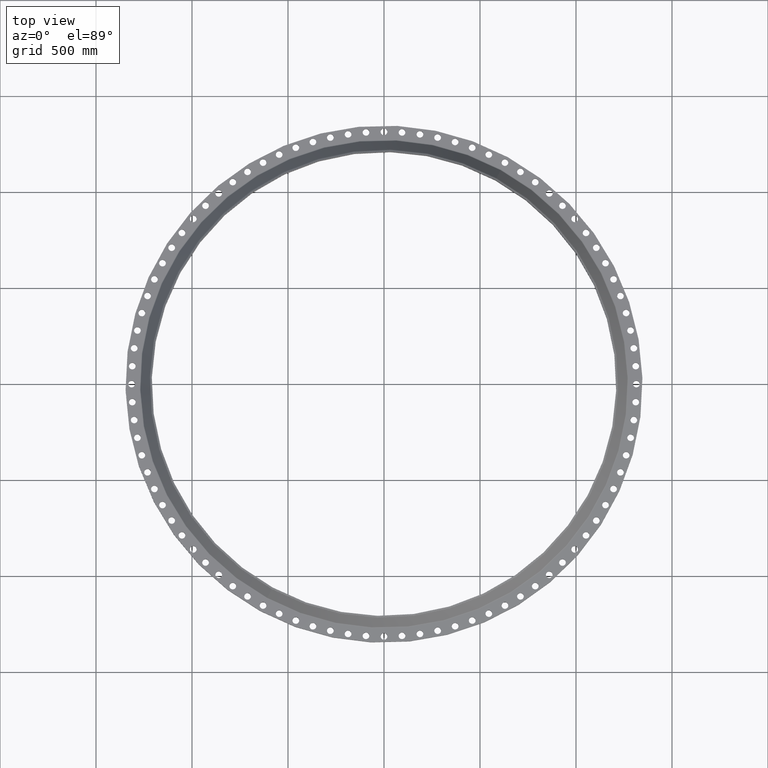
[diagram: clean part render]
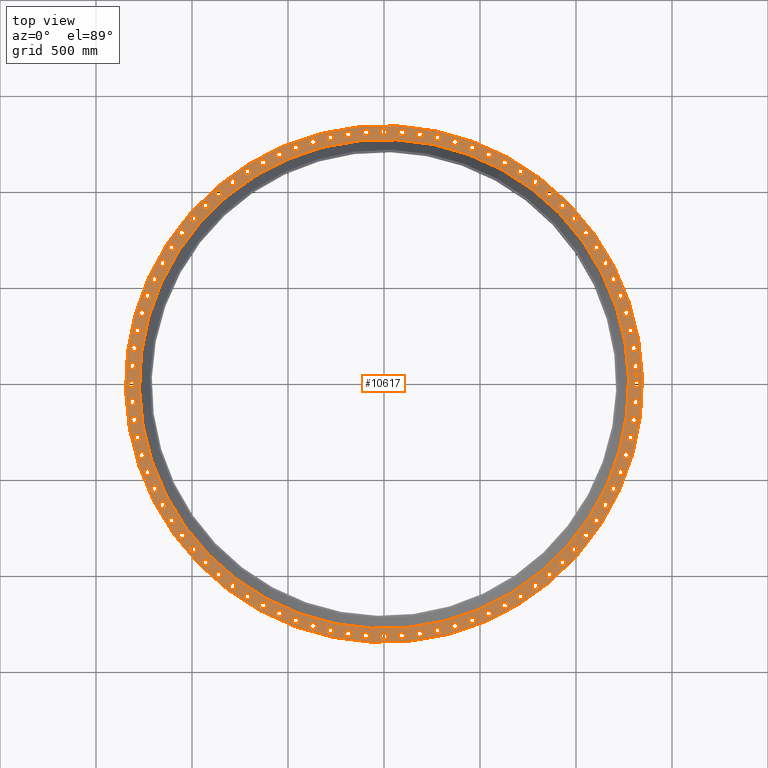
[diagram: same view with one face highlighted and labeled with its STEP entity id]
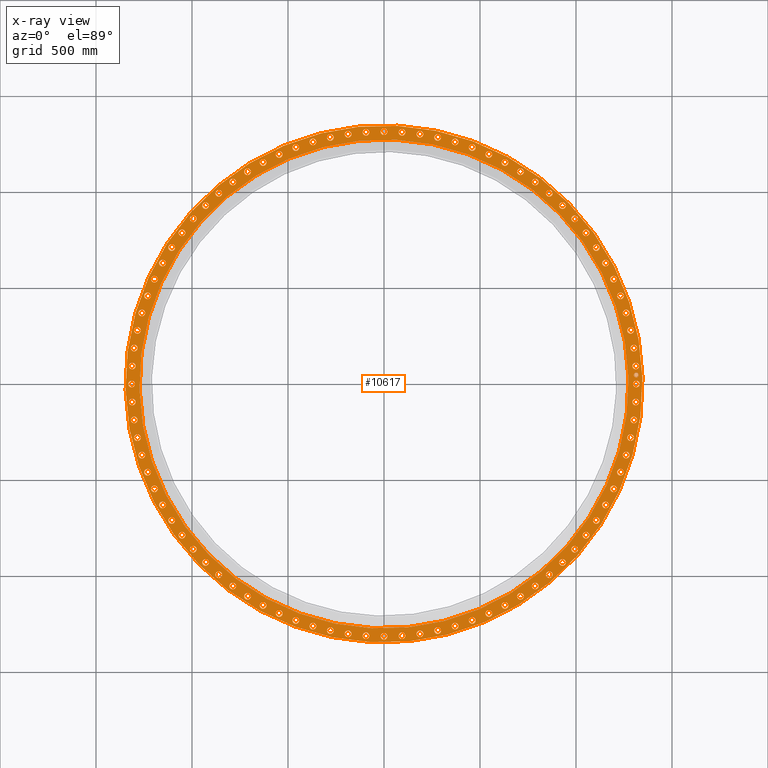
[diagram: x-ray of the same camera — body ghosted, the highlighted face saturated]
A machine part, top view. The second image highlights one B-rep face of the part: STEP entity #10617.
The next image is the same camera in x-ray: the body ghosted, the highlighted face saturated — about 0% of this face is hidden behind the body in this view.
In plain terms, the highlighted planar face has unit normal (0, 0, -1).
Its self-contained STEP definition (entity closure, byte-faithful):
#65=AXIS2_PLACEMENT_3D('Circle Axis2P3D',#63,#64,$) ;
#110=AXIS2_PLACEMENT_3D('Circle Axis2P3D',#108,#109,$) ;
#147=AXIS2_PLACEMENT_3D('Circle Axis2P3D',#145,#146,$) ;
#171=AXIS2_PLACEMENT_3D('Circle Axis2P3D',#169,#170,$) ;
#188=AXIS2_PLACEMENT_3D('Circle Axis2P3D',#186,#187,$) ;
#223=AXIS2_PLACEMENT_3D('Circle Axis2P3D',#221,#222,$) ;
#6166=AXIS2_PLACEMENT_3D('Circle Axis2P3D',#6164,#6165,$) ;
#6178=AXIS2_PLACEMENT_3D('Circle Axis2P3D',#6176,#6177,$) ;
#6213=AXIS2_PLACEMENT_3D('Circle Axis2P3D',#6211,#6212,$) ;
#6225=AXIS2_PLACEMENT_3D('Circle Axis2P3D',#6223,#6224,$) ;
#6260=AXIS2_PLACEMENT_3D('Circle Axis2P3D',#6258,#6259,$) ;
#6272=AXIS2_PLACEMENT_3D('Circle Axis2P3D',#6270,#6271,$) ;
#6307=AXIS2_PLACEMENT_3D('Circle Axis2P3D',#6305,#6306,$) ;
#6319=AXIS2_PLACEMENT_3D('Circle Axis2P3D',#6317,#6318,$) ;
#6354=AXIS2_PLACEMENT_3D('Circle Axis2P3D',#6352,#6353,$) ;
#6366=AXIS2_PLACEMENT_3D('Circle Axis2P3D',#6364,#6365,$) ;
#6401=AXIS2_PLACEMENT_3D('Circle Axis2P3D',#6399,#6400,$) ;
#6413=AXIS2_PLACEMENT_3D('Circle Axis2P3D',#6411,#6412,$) ;
#6448=AXIS2_PLACEMENT_3D('Circle Axis2P3D',#6446,#6447,$) ;
#6460=AXIS2_PLACEMENT_3D('Circle Axis2P3D',#6458,#6459,$) ;
#6495=AXIS2_PLACEMENT_3D('Circle Axis2P3D',#6493,#6494,$) ;
#6507=AXIS2_PLACEMENT_3D('Circle Axis2P3D',#6505,#6506,$) ;
#6542=AXIS2_PLACEMENT_3D('Circle Axis2P3D',#6540,#6541,$) ;
#6554=AXIS2_PLACEMENT_3D('Circle Axis2P3D',#6552,#6553,$) ;
#6589=AXIS2_PLACEMENT_3D('Circle Axis2P3D',#6587,#6588,$) ;
#6601=AXIS2_PLACEMENT_3D('Circle Axis2P3D',#6599,#6600,$) ;
#6636=AXIS2_PLACEMENT_3D('Circle Axis2P3D',#6634,#6635,$) ;
#6648=AXIS2_PLACEMENT_3D('Circle Axis2P3D',#6646,#6647,$) ;
#6683=AXIS2_PLACEMENT_3D('Circle Axis2P3D',#6681,#6682,$) ;
#6695=AXIS2_PLACEMENT_3D('Circle Axis2P3D',#6693,#6694,$) ;
#6730=AXIS2_PLACEMENT_3D('Circle Axis2P3D',#6728,#6729,$) ;
#6742=AXIS2_PLACEMENT_3D('Circle Axis2P3D',#6740,#6741,$) ;
#6777=AXIS2_PLACEMENT_3D('Circle Axis2P3D',#6775,#6776,$) ;
#6789=AXIS2_PLACEMENT_3D('Circle Axis2P3D',#6787,#6788,$) ;
#6824=AXIS2_PLACEMENT_3D('Circle Axis2P3D',#6822,#6823,$) ;
#6836=AXIS2_PLACEMENT_3D('Circle Axis2P3D',#6834,#6835,$) ;
#6871=AXIS2_PLACEMENT_3D('Circle Axis2P3D',#6869,#6870,$) ;
#6883=AXIS2_PLACEMENT_3D('Circle Axis2P3D',#6881,#6882,$) ;
#6918=AXIS2_PLACEMENT_3D('Circle Axis2P3D',#6916,#6917,$) ;
#6930=AXIS2_PLACEMENT_3D('Circle Axis2P3D',#6928,#6929,$) ;
#6965=AXIS2_PLACEMENT_3D('Circle Axis2P3D',#6963,#6964,$) ;
#6977=AXIS2_PLACEMENT_3D('Circle Axis2P3D',#6975,#6976,$) ;
#7012=AXIS2_PLACEMENT_3D('Circle Axis2P3D',#7010,#7011,$) ;
#7024=AXIS2_PLACEMENT_3D('Circle Axis2P3D',#7022,#7023,$) ;
#7059=AXIS2_PLACEMENT_3D('Circle Axis2P3D',#7057,#7058,$) ;
#7071=AXIS2_PLACEMENT_3D('Circle Axis2P3D',#7069,#7070,$) ;
#7106=AXIS2_PLACEMENT_3D('Circle Axis2P3D',#7104,#7105,$) ;
#7118=AXIS2_PLACEMENT_3D('Circle Axis2P3D',#7116,#7117,$) ;
#7153=AXIS2_PLACEMENT_3D('Circle Axis2P3D',#7151,#7152,$) ;
#7165=AXIS2_PLACEMENT_3D('Circle Axis2P3D',#7163,#7164,$) ;
#7200=AXIS2_PLACEMENT_3D('Circle Axis2P3D',#7198,#7199,$) ;
#7212=AXIS2_PLACEMENT_3D('Circle Axis2P3D',#7210,#7211,$) ;
#7247=AXIS2_PLACEMENT_3D('Circle Axis2P3D',#7245,#7246,$) ;
#7259=AXIS2_PLACEMENT_3D('Circle Axis2P3D',#7257,#7258,$) ;
#7294=AXIS2_PLACEMENT_3D('Circle Axis2P3D',#7292,#7293,$) ;
#7306=AXIS2_PLACEMENT_3D('Circle Axis2P3D',#7304,#7305,$) ;
#7341=AXIS2_PLACEMENT_3D('Circle Axis2P3D',#7339,#7340,$) ;
#7353=AXIS2_PLACEMENT_3D('Circle Axis2P3D',#7351,#7352,$) ;
#7388=AXIS2_PLACEMENT_3D('Circle Axis2P3D',#7386,#7387,$) ;
#7400=AXIS2_PLACEMENT_3D('Circle Axis2P3D',#7398,#7399,$) ;
#7435=AXIS2_PLACEMENT_3D('Circle Axis2P3D',#7433,#7434,$) ;
#7447=AXIS2_PLACEMENT_3D('Circle Axis2P3D',#7445,#7446,$) ;
#7482=AXIS2_PLACEMENT_3D('Circle Axis2P3D',#7480,#7481,$) ;
#7494=AXIS2_PLACEMENT_3D('Circle Axis2P3D',#7492,#7493,$) ;
#7529=AXIS2_PLACEMENT_3D('Circle Axis2P3D',#7527,#7528,$) ;
#7541=AXIS2_PLACEMENT_3D('Circle Axis2P3D',#7539,#7540,$) ;
#7576=AXIS2_PLACEMENT_3D('Circle Axis2P3D',#7574,#7575,$) ;
#7588=AXIS2_PLACEMENT_3D('Circle Axis2P3D',#7586,#7587,$) ;
#7623=AXIS2_PLACEMENT_3D('Circle Axis2P3D',#7621,#7622,$) ;
#7635=AXIS2_PLACEMENT_3D('Circle Axis2P3D',#7633,#7634,$) ;
#7670=AXIS2_PLACEMENT_3D('Circle Axis2P3D',#7668,#7669,$) ;
#7682=AXIS2_PLACEMENT_3D('Circle Axis2P3D',#7680,#7681,$) ;
#7717=AXIS2_PLACEMENT_3D('Circle Axis2P3D',#7715,#7716,$) ;
#7729=AXIS2_PLACEMENT_3D('Circle Axis2P3D',#7727,#7728,$) ;
#7764=AXIS2_PLACEMENT_3D('Circle Axis2P3D',#7762,#7763,$) ;
#7776=AXIS2_PLACEMENT_3D('Circle Axis2P3D',#7774,#7775,$) ;
#7811=AXIS2_PLACEMENT_3D('Circle Axis2P3D',#7809,#7810,$) ;
#7823=AXIS2_PLACEMENT_3D('Circle Axis2P3D',#7821,#7822,$) ;
#7858=AXIS2_PLACEMENT_3D('Circle Axis2P3D',#7856,#7857,$) ;
#7870=AXIS2_PLACEMENT_3D('Circle Axis2P3D',#7868,#7869,$) ;
#7905=AXIS2_PLACEMENT_3D('Circle Axis2P3D',#7903,#7904,$) ;
#7917=AXIS2_PLACEMENT_3D('Circle Axis2P3D',#7915,#7916,$) ;
#7952=AXIS2_PLACEMENT_3D('Circle Axis2P3D',#7950,#7951,$) ;
#7964=AXIS2_PLACEMENT_3D('Circle Axis2P3D',#7962,#7963,$) ;
#7999=AXIS2_PLACEMENT_3D('Circle Axis2P3D',#7997,#7998,$) ;
#8011=AXIS2_PLACEMENT_3D('Circle Axis2P3D',#8009,#8010,$) ;
#8046=AXIS2_PLACEMENT_3D('Circle Axis2P3D',#8044,#8045,$) ;
#8058=AXIS2_PLACEMENT_3D('Circle Axis2P3D',#8056,#8057,$) ;
#8093=AXIS2_PLACEMENT_3D('Circle Axis2P3D',#8091,#8092,$) ;
#8105=AXIS2_PLACEMENT_3D('Circle Axis2P3D',#8103,#8104,$) ;
#8140=AXIS2_PLACEMENT_3D('Circle Axis2P3D',#8138,#8139,$) ;
#8152=AXIS2_PLACEMENT_3D('Circle Axis2P3D',#8150,#8151,$) ;
#8187=AXIS2_PLACEMENT_3D('Circle Axis2P3D',#8185,#8186,$) ;
#8199=AXIS2_PLACEMENT_3D('Circle Axis2P3D',#8197,#8198,$) ;
#8234=AXIS2_PLACEMENT_3D('Circle Axis2P3D',#8232,#8233,$) ;
#8246=AXIS2_PLACEMENT_3D('Circle Axis2P3D',#8244,#8245,$) ;
#8281=AXIS2_PLACEMENT_3D('Circle Axis2P3D',#8279,#8280,$) ;
#8293=AXIS2_PLACEMENT_3D('Circle Axis2P3D',#8291,#8292,$) ;
#8328=AXIS2_PLACEMENT_3D('Circle Axis2P3D',#8326,#8327,$) ;
#8340=AXIS2_PLACEMENT_3D('Circle Axis2P3D',#8338,#8339,$) ;
#8375=AXIS2_PLACEMENT_3D('Circle Axis2P3D',#8373,#8374,$) ;
#8387=AXIS2_PLACEMENT_3D('Circle Axis2P3D',#8385,#8386,$) ;
#8422=AXIS2_PLACEMENT_3D('Circle Axis2P3D',#8420,#8421,$) ;
#8434=AXIS2_PLACEMENT_3D('Circle Axis2P3D',#8432,#8433,$) ;
#8469=AXIS2_PLACEMENT_3D('Circle Axis2P3D',#8467,#8468,$) ;
#8481=AXIS2_PLACEMENT_3D('Circle Axis2P3D',#8479,#8480,$) ;
#8516=AXIS2_PLACEMENT_3D('Circle Axis2P3D',#8514,#8515,$) ;
#8528=AXIS2_PLACEMENT_3D('Circle Axis2P3D',#8526,#8527,$) ;
#8563=AXIS2_PLACEMENT_3D('Circle Axis2P3D',#8561,#8562,$) ;
#8575=AXIS2_PLACEMENT_3D('Circle Axis2P3D',#8573,#8574,$) ;
#8610=AXIS2_PLACEMENT_3D('Circle Axis2P3D',#8608,#8609,$) ;
#8622=AXIS2_PLACEMENT_3D('Circle Axis2P3D',#8620,#8621,$) ;
#8657=AXIS2_PLACEMENT_3D('Circle Axis2P3D',#8655,#8656,$) ;
#8669=AXIS2_PLACEMENT_3D('Circle Axis2P3D',#8667,#8668,$) ;
#8704=AXIS2_PLACEMENT_3D('Circle Axis2P3D',#8702,#8703,$) ;
#8716=AXIS2_PLACEMENT_3D('Circle Axis2P3D',#8714,#8715,$) ;
#8751=AXIS2_PLACEMENT_3D('Circle Axis2P3D',#8749,#8750,$) ;
#8763=AXIS2_PLACEMENT_3D('Circle Axis2P3D',#8761,#8762,$) ;
#8798=AXIS2_PLACEMENT_3D('Circle Axis2P3D',#8796,#8797,$) ;
#8810=AXIS2_PLACEMENT_3D('Circle Axis2P3D',#8808,#8809,$) ;
#8845=AXIS2_PLACEMENT_3D('Circle Axis2P3D',#8843,#8844,$) ;
#8857=AXIS2_PLACEMENT_3D('Circle Axis2P3D',#8855,#8856,$) ;
#8892=AXIS2_PLACEMENT_3D('Circle Axis2P3D',#8890,#8891,$) ;
#8904=AXIS2_PLACEMENT_3D('Circle Axis2P3D',#8902,#8903,$) ;
#8939=AXIS2_PLACEMENT_3D('Circle Axis2P3D',#8937,#8938,$) ;
#8951=AXIS2_PLACEMENT_3D('Circle Axis2P3D',#8949,#8950,$) ;
#8986=AXIS2_PLACEMENT_3D('Circle Axis2P3D',#8984,#8985,$) ;
#8998=AXIS2_PLACEMENT_3D('Circle Axis2P3D',#8996,#8997,$) ;
#9033=AXIS2_PLACEMENT_3D('Circle Axis2P3D',#9031,#9032,$) ;
#9045=AXIS2_PLACEMENT_3D('Circle Axis2P3D',#9043,#9044,$) ;
#9080=AXIS2_PLACEMENT_3D('Circle Axis2P3D',#9078,#9079,$) ;
#9092=AXIS2_PLACEMENT_3D('Circle Axis2P3D',#9090,#9091,$) ;
#9127=AXIS2_PLACEMENT_3D('Circle Axis2P3D',#9125,#9126,$) ;
#9139=AXIS2_PLACEMENT_3D('Circle Axis2P3D',#9137,#9138,$) ;
#9174=AXIS2_PLACEMENT_3D('Circle Axis2P3D',#9172,#9173,$) ;
#9186=AXIS2_PLACEMENT_3D('Circle Axis2P3D',#9184,#9185,$) ;
#9221=AXIS2_PLACEMENT_3D('Circle Axis2P3D',#9219,#9220,$) ;
#9233=AXIS2_PLACEMENT_3D('Circle Axis2P3D',#9231,#9232,$) ;
#9268=AXIS2_PLACEMENT_3D('Circle Axis2P3D',#9266,#9267,$) ;
#9280=AXIS2_PLACEMENT_3D('Circle Axis2P3D',#9278,#9279,$) ;
#9315=AXIS2_PLACEMENT_3D('Circle Axis2P3D',#9313,#9314,$) ;
#9327=AXIS2_PLACEMENT_3D('Circle Axis2P3D',#9325,#9326,$) ;
#9362=AXIS2_PLACEMENT_3D('Circle Axis2P3D',#9360,#9361,$) ;
#9374=AXIS2_PLACEMENT_3D('Circle Axis2P3D',#9372,#9373,$) ;
#9409=AXIS2_PLACEMENT_3D('Circle Axis2P3D',#9407,#9408,$) ;
#9421=AXIS2_PLACEMENT_3D('Circle Axis2P3D',#9419,#9420,$) ;
#9456=AXIS2_PLACEMENT_3D('Circle Axis2P3D',#9454,#9455,$) ;
#9468=AXIS2_PLACEMENT_3D('Circle Axis2P3D',#9466,#9467,$) ;
#9503=AXIS2_PLACEMENT_3D('Circle Axis2P3D',#9501,#9502,$) ;
#9515=AXIS2_PLACEMENT_3D('Circle Axis2P3D',#9513,#9514,$) ;
#9550=AXIS2_PLACEMENT_3D('Circle Axis2P3D',#9548,#9549,$) ;
#9562=AXIS2_PLACEMENT_3D('Circle Axis2P3D',#9560,#9561,$) ;
#9597=AXIS2_PLACEMENT_3D('Circle Axis2P3D',#9595,#9596,$) ;
#9609=AXIS2_PLACEMENT_3D('Circle Axis2P3D',#9607,#9608,$) ;
#9644=AXIS2_PLACEMENT_3D('Circle Axis2P3D',#9642,#9643,$) ;
#9656=AXIS2_PLACEMENT_3D('Circle Axis2P3D',#9654,#9655,$) ;
#9691=AXIS2_PLACEMENT_3D('Circle Axis2P3D',#9689,#9690,$) ;
#9703=AXIS2_PLACEMENT_3D('Circle Axis2P3D',#9701,#9702,$) ;
#9738=AXIS2_PLACEMENT_3D('Circle Axis2P3D',#9736,#9737,$) ;
#9750=AXIS2_PLACEMENT_3D('Circle Axis2P3D',#9748,#9749,$) ;
#9785=AXIS2_PLACEMENT_3D('Circle Axis2P3D',#9783,#9784,$) ;
#9797=AXIS2_PLACEMENT_3D('Circle Axis2P3D',#9795,#9796,$) ;
#9832=AXIS2_PLACEMENT_3D('Circle Axis2P3D',#9830,#9831,$) ;
#9844=AXIS2_PLACEMENT_3D('Circle Axis2P3D',#9842,#9843,$) ;
#9879=AXIS2_PLACEMENT_3D('Circle Axis2P3D',#9877,#9878,$) ;
#9891=AXIS2_PLACEMENT_3D('Circle Axis2P3D',#9889,#9890,$) ;
#9926=AXIS2_PLACEMENT_3D('Circle Axis2P3D',#9924,#9925,$) ;
#9938=AXIS2_PLACEMENT_3D('Circle Axis2P3D',#9936,#9937,$) ;
#9973=AXIS2_PLACEMENT_3D('Circle Axis2P3D',#9971,#9972,$) ;
#9985=AXIS2_PLACEMENT_3D('Circle Axis2P3D',#9983,#9984,$) ;
#10020=AXIS2_PLACEMENT_3D('Circle Axis2P3D',#10018,#10019,$) ;
#10032=AXIS2_PLACEMENT_3D('Circle Axis2P3D',#10030,#10031,$) ;
#10067=AXIS2_PLACEMENT_3D('Circle Axis2P3D',#10065,#10066,$) ;
#10079=AXIS2_PLACEMENT_3D('Circle Axis2P3D',#10077,#10078,$) ;
#10114=AXIS2_PLACEMENT_3D('Circle Axis2P3D',#10112,#10113,$) ;
#10126=AXIS2_PLACEMENT_3D('Circle Axis2P3D',#10124,#10125,$) ;
#10161=AXIS2_PLACEMENT_3D('Circle Axis2P3D',#10159,#10160,$) ;
#10173=AXIS2_PLACEMENT_3D('Circle Axis2P3D',#10171,#10172,$) ;
#10208=AXIS2_PLACEMENT_3D('Circle Axis2P3D',#10206,#10207,$) ;
#10220=AXIS2_PLACEMENT_3D('Circle Axis2P3D',#10218,#10219,$) ;
#10237=AXIS2_PLACEMENT_3D('Plane Axis2P3D',#10234,#10235,#10236) ;
#10601=AXIS2_PLACEMENT_3D('Circle Axis2P3D',#10599,#10600,$) ;
#10610=AXIS2_PLACEMENT_3D('Circle Axis2P3D',#10608,#10609,$) ;
#46=CARTESIAN_POINT('Vertex',(51.1444680325,0.330803621638,3.50000000001)) ;
#60=CARTESIAN_POINT('Vertex',(52.3555319679,-0.330803621638,3.50000000001)) ;
#63=CARTESIAN_POINT('Axis2P3D Location',(51.7500000002,0.,3.50000000001)) ;
#108=CARTESIAN_POINT('Axis2P3D Location',(51.7500000002,0.,3.50000000001)) ;
#142=CARTESIAN_POINT('Vertex',(-25.4095535461,-46.5118757804,3.50000000001)) ;
#145=CARTESIAN_POINT('Axis2P3D Location',(0.,0.,3.50000000001)) ;
#149=CARTESIAN_POINT('Vertex',(25.4095535461,46.5118757804,3.50000000001)) ;
#169=CARTESIAN_POINT('Axis2P3D Location',(0.,0.,3.50000000001)) ;
#186=CARTESIAN_POINT('Axis2P3D Location',(0.,0.,3.50000000001)) ;
#190=CARTESIAN_POINT('Vertex',(24.0410678095,44.0068794422,3.50000000001)) ;
#192=CARTESIAN_POINT('Vertex',(-24.0410678095,-44.0068794422,3.50000000001)) ;
#221=CARTESIAN_POINT('Axis2P3D Location',(0.,0.,3.50000000001)) ;
#6154=CARTESIAN_POINT('Vertex',(-3.97856534652,50.9905585295,3.50000000001)) ;
#6161=CARTESIAN_POINT('Vertex',(-3.40504011463,52.2457353331,3.50000000001)) ;
#6164=CARTESIAN_POINT('Axis2P3D Location',(-3.69180273058,51.6181469313,3.50000000001)) ;
#6176=CARTESIAN_POINT('Axis2P3D Location',(-3.69180273058,51.6181469313,3.50000000001)) ;
#6201=CARTESIAN_POINT('Vertex',(-36.3985136501,35.9306866819,3.50000000001)) ;
#6208=CARTESIAN_POINT('Vertex',(-36.787038203,37.2548651712,3.50000000001)) ;
#6211=CARTESIAN_POINT('Axis2P3D Location',(-36.5927759266,36.5927759266,3.50000000001)) ;
#6223=CARTESIAN_POINT('Axis2P3D Location',(-36.5927759266,36.5927759266,3.50000000001)) ;
#6248=CARTESIAN_POINT('Vertex',(-30.9145593992,40.7450126827,3.50000000001)) ;
#6255=CARTESIAN_POINT('Vertex',(-31.1106790849,42.1110057533,3.50000000001)) ;
#6258=CARTESIAN_POINT('Axis2P3D Location',(-31.0126192421,41.428009218,3.50000000001)) ;
#6270=CARTESIAN_POINT('Axis2P3D Location',(-31.0126192421,41.428009218,3.50000000001)) ;
#6295=CARTESIAN_POINT('Vertex',(51.0377570498,-3.31864380267,3.50000000001)) ;
#6302=CARTESIAN_POINT('Vertex',(52.1985368128,-4.06496165848,3.50000000001)) ;
#6305=CARTESIAN_POINT('Axis2P3D Location',(51.6181469313,-3.69180273058,3.50000000001)) ;
#6317=CARTESIAN_POINT('Axis2P3D Location',(51.6181469313,-3.69180273058,3.50000000001)) ;
#6342=CARTESIAN_POINT('Vertex',(-46.6600652985,20.9452702943,3.50000000001)) ;
#6349=CARTESIAN_POINT('Vertex',(-47.486846221,22.0501835516,3.50000000001)) ;
#6352=CARTESIAN_POINT('Axis2P3D Location',(-47.0734557598,21.4977269229,3.50000000001)) ;
#6364=CARTESIAN_POINT('Axis2P3D Location',(-47.0734557598,21.4977269229,3.50000000001)) ;
#6389=CARTESIAN_POINT('Vertex',(50.6709693561,-6.95118017887,3.50000000001)) ;
#6396=CARTESIAN_POINT('Vertex',(51.775549879,-7.77840558247,3.50000000001)) ;
#6399=CARTESIAN_POINT('Axis2P3D Location',(51.2232596175,-7.36479288067,3.50000000001)) ;
#6411=CARTESIAN_POINT('Axis2P3D Location',(51.2232596175,-7.36479288067,3.50000000001)) ;
#6436=CARTESIAN_POINT('Vertex',(27.37249729,43.2043103575,3.50000000001)) ;
#6443=CARTESIAN_POINT('Vertex',(28.5838273168,43.8654302908,3.50000000001)) ;
#6446=CARTESIAN_POINT('Axis2P3D Location',(27.9781623034,43.5348703242,3.50000000001)) ;
#6458=CARTESIAN_POINT('Axis2P3D Location',(27.9781623034,43.5348703242,3.50000000001)) ;
#6483=CARTESIAN_POINT('Vertex',(50.0459740173,-10.5482949342,3.50000000001)) ;
#6490=CARTESIAN_POINT('Vertex',(51.0887266111,-11.4522125346,3.50000000001)) ;
#6493=CARTESIAN_POINT('Axis2P3D Location',(50.5673503142,-11.0002537344,3.50000000001)) ;
#6505=CARTESIAN_POINT('Axis2P3D Location',(50.5673503142,-11.0002537344,3.50000000001)) ;
#6530=CARTESIAN_POINT('Vertex',(-43.2043103575,27.37249729,3.50000000001)) ;
#6537=CARTESIAN_POINT('Vertex',(-43.8654302908,28.5838273168,3.50000000001)) ;
#6540=CARTESIAN_POINT('Axis2P3D Location',(-43.5348703242,27.9781623034,3.50000000001)) ;
#6552=CARTESIAN_POINT('Axis2P3D Location',(-43.5348703242,27.9781623034,3.50000000001)) ;
#6577=CARTESIAN_POINT('Vertex',(49.1659558666,-14.0916579965,3.50000000001)) ;
#6584=CARTESIAN_POINT('Vertex',(50.1415669029,-15.0676616367,3.50000000001)) ;
#6587=CARTESIAN_POINT('Axis2P3D Location',(49.6537613847,-14.5796598166,3.50000000001)) ;
#6599=CARTESIAN_POINT('Axis2P3D Location',(49.6537613847,-14.5796598166,3.50000000001)) ;
#6624=CARTESIAN_POINT('Vertex',(-51.1444680325,-0.330803621638,3.50000000001)) ;
#6631=CARTESIAN_POINT('Vertex',(-52.3555319679,0.330803621638,3.50000000001)) ;
#6634=CARTESIAN_POINT('Axis2P3D Location',(-51.7500000002,-6.33754718561E-015,3.50000000001)) ;
#6646=CARTESIAN_POINT('Axis2P3D Location',(-51.7500000002,-6.33754718561E-015,3.50000000001)) ;
#6671=CARTESIAN_POINT('Vertex',(48.0353992746,-17.5632131997,3.50000000001)) ;
#6678=CARTESIAN_POINT('Vertex',(48.9388972633,-18.606329389,3.50000000001)) ;
#6681=CARTESIAN_POINT('Axis2P3D Location',(48.4871482689,-18.0847712943,3.50000000001)) ;
#6693=CARTESIAN_POINT('Axis2P3D Location',(48.4871482689,-18.0847712943,3.50000000001)) ;
#6718=CARTESIAN_POINT('Vertex',(38.4357796437,33.7425085693,3.50000000001)) ;
#6725=CARTESIAN_POINT('Vertex',(39.7843013023,34.0355773944,3.50000000001)) ;
#6728=CARTESIAN_POINT('Axis2P3D Location',(39.110040473,33.8890429818,3.50000000001)) ;
#6740=CARTESIAN_POINT('Axis2P3D Location',(39.110040473,33.8890429818,3.50000000001)) ;
#6765=CARTESIAN_POINT('Vertex',(46.6600652985,-20.9452702943,3.50000000001)) ;
#6772=CARTESIAN_POINT('Vertex',(47.486846221,-22.0501835516,3.50000000001)) ;
#6775=CARTESIAN_POINT('Axis2P3D Location',(47.0734557598,-21.4977269229,3.50000000001)) ;
#6787=CARTESIAN_POINT('Axis2P3D Location',(47.0734557598,-21.4977269229,3.50000000001)) ;
#6812=CARTESIAN_POINT('Vertex',(46.385223717,21.5470894111,3.50000000001)) ;
#6819=CARTESIAN_POINT('Vertex',(47.7616878026,21.4483644348,3.50000000001)) ;
#6822=CARTESIAN_POINT('Axis2P3D Location',(47.0734557598,21.4977269229,3.50000000001)) ;
#6834=CARTESIAN_POINT('Axis2P3D Location',(47.0734557598,21.4977269229,3.50000000001)) ;
#6859=CARTESIAN_POINT('Vertex',(45.0469623252,-24.2205950925,3.50000000001)) ;
#6866=CARTESIAN_POINT('Vertex',(45.7928130954,-25.3816750332,3.50000000001)) ;
#6869=CARTESIAN_POINT('Axis2P3D Location',(45.4198877103,-24.8011350629,3.50000000001)) ;
#6881=CARTESIAN_POINT('Axis2P3D Location',(45.4198877103,-24.8011350629,3.50000000001)) ;
#6906=CARTESIAN_POINT('Vertex',(50.5768128282,7.60605321437,3.50000000001)) ;
#6913=CARTESIAN_POINT('Vertex',(51.8697064068,7.12353254698,3.50000000001)) ;
#6916=CARTESIAN_POINT('Axis2P3D Location',(51.2232596175,7.36479288067,3.50000000001)) ;
#6928=CARTESIAN_POINT('Axis2P3D Location',(51.2232596175,7.36479288067,3.50000000001)) ;
#6953=CARTESIAN_POINT('Vertex',(43.2043103575,-27.37249729,3.50000000001)) ;
#6960=CARTESIAN_POINT('Vertex',(43.8654302908,-28.5838273168,3.50000000001)) ;
#6963=CARTESIAN_POINT('Axis2P3D Location',(43.5348703242,-27.9781623034,3.50000000001)) ;
#6975=CARTESIAN_POINT('Axis2P3D Location',(43.5348703242,-27.9781623034,3.50000000001)) ;
#7000=CARTESIAN_POINT('Vertex',(-7.60605321437,50.5768128282,3.50000000001)) ;
#7007=CARTESIAN_POINT('Vertex',(-7.12353254698,51.8697064068,3.50000000001)) ;
#7010=CARTESIAN_POINT('Axis2P3D Location',(-7.36479288067,51.2232596175,3.50000000001)) ;
#7022=CARTESIAN_POINT('Axis2P3D Location',(-7.36479288067,51.2232596175,3.50000000001)) ;
#7047=CARTESIAN_POINT('Vertex',(41.1414991276,-30.3849155157,3.50000000001)) ;
#7054=CARTESIAN_POINT('Vertex',(41.7145193084,-31.6403229685,3.50000000001)) ;
#7057=CARTESIAN_POINT('Axis2P3D Location',(41.428009218,-31.0126192421,3.50000000001)) ;
#7069=CARTESIAN_POINT('Axis2P3D Location',(41.428009218,-31.0126192421,3.50000000001)) ;
#7094=CARTESIAN_POINT('Vertex',(24.2205950925,45.0469623252,3.50000000001)) ;
#7101=CARTESIAN_POINT('Vertex',(25.3816750332,45.7928130954,3.50000000001)) ;
#7104=CARTESIAN_POINT('Axis2P3D Location',(24.8011350629,45.4198877103,3.50000000001)) ;
#7116=CARTESIAN_POINT('Axis2P3D Location',(24.8011350629,45.4198877103,3.50000000001)) ;
#7141=CARTESIAN_POINT('Vertex',(38.8690402486,-33.2424991768,3.50000000001)) ;
#7148=CARTESIAN_POINT('Vertex',(39.3510406974,-34.5355867869,3.50000000001)) ;
#7151=CARTESIAN_POINT('Axis2P3D Location',(39.110040473,-33.8890429818,3.50000000001)) ;
#7163=CARTESIAN_POINT('Axis2P3D Location',(39.110040473,-33.8890429818,3.50000000001)) ;
#7188=CARTESIAN_POINT('Vertex',(-51.0377570498,3.31864380267,3.50000000001)) ;
#7195=CARTESIAN_POINT('Vertex',(-52.1985368128,4.06496165848,3.50000000001)) ;
#7198=CARTESIAN_POINT('Axis2P3D Location',(-51.6181469313,3.69180273058,3.50000000001)) ;
#7210=CARTESIAN_POINT('Axis2P3D Location',(-51.6181469313,3.69180273058,3.50000000001)) ;
#7235=CARTESIAN_POINT('Vertex',(36.3985136501,-35.9306866819,3.50000000001)) ;
#7242=CARTESIAN_POINT('Vertex',(36.787038203,-37.2548651712,3.50000000001)) ;
#7245=CARTESIAN_POINT('Axis2P3D Location',(36.5927759266,-36.5927759266,3.50000000001)) ;
#7257=CARTESIAN_POINT('Axis2P3D Location',(36.5927759266,-36.5927759266,3.50000000001)) ;
#7282=CARTESIAN_POINT('Vertex',(40.7450126827,30.9145593992,3.50000000001)) ;
#7289=CARTESIAN_POINT('Vertex',(42.1110057533,31.1106790849,3.50000000001)) ;
#7292=CARTESIAN_POINT('Axis2P3D Location',(41.428009218,31.0126192421,3.50000000001)) ;
#7304=CARTESIAN_POINT('Axis2P3D Location',(41.428009218,31.0126192421,3.50000000001)) ;
#7329=CARTESIAN_POINT('Vertex',(33.7425085693,-38.4357796437,3.50000000001)) ;
#7336=CARTESIAN_POINT('Vertex',(34.0355773944,-39.7843013023,3.50000000001)) ;
#7339=CARTESIAN_POINT('Axis2P3D Location',(33.8890429818,-39.110040473,3.50000000001)) ;
#7351=CARTESIAN_POINT('Axis2P3D Location',(33.8890429818,-39.110040473,3.50000000001)) ;
#7376=CARTESIAN_POINT('Vertex',(-50.9905585295,-3.97856534652,3.50000000001)) ;
#7383=CARTESIAN_POINT('Vertex',(-52.2457353331,-3.40504011463,3.50000000001)) ;
#7386=CARTESIAN_POINT('Axis2P3D Location',(-51.6181469313,-3.69180273058,3.50000000001)) ;
#7398=CARTESIAN_POINT('Axis2P3D Location',(-51.6181469313,-3.69180273058,3.50000000001)) ;
#7423=CARTESIAN_POINT('Vertex',(30.9145593992,-40.7450126827,3.50000000001)) ;
#7430=CARTESIAN_POINT('Vertex',(31.1106790849,-42.1110057533,3.50000000001)) ;
#7433=CARTESIAN_POINT('Axis2P3D Location',(31.0126192421,-41.428009218,3.50000000001)) ;
#7445=CARTESIAN_POINT('Axis2P3D Location',(31.0126192421,-41.428009218,3.50000000001)) ;
#7470=CARTESIAN_POINT('Vertex',(42.8466184767,27.9290767208,3.50000000001)) ;
#7477=CARTESIAN_POINT('Vertex',(44.2231221717,28.0272478861,3.50000000001)) ;
#7480=CARTESIAN_POINT('Axis2P3D Location',(43.5348703242,27.9781623034,3.50000000001)) ;
#7492=CARTESIAN_POINT('Axis2P3D Location',(43.5348703242,27.9781623034,3.50000000001)) ;
#7517=CARTESIAN_POINT('Vertex',(27.9290767208,-42.8466184767,3.50000000001)) ;
#7524=CARTESIAN_POINT('Vertex',(28.0272478861,-44.2231221717,3.50000000001)) ;
#7527=CARTESIAN_POINT('Axis2P3D Location',(27.9781623034,-43.5348703242,3.50000000001)) ;
#7539=CARTESIAN_POINT('Axis2P3D Location',(27.9781623034,-43.5348703242,3.50000000001)) ;
#7564=CARTESIAN_POINT('Vertex',(14.0916579965,49.1659558666,3.50000000001)) ;
#7571=CARTESIAN_POINT('Vertex',(15.0676616367,50.1415669029,3.50000000001)) ;
#7574=CARTESIAN_POINT('Axis2P3D Location',(14.5796598166,49.6537613847,3.50000000001)) ;
#7586=CARTESIAN_POINT('Axis2P3D Location',(14.5796598166,49.6537613847,3.50000000001)) ;
#7611=CARTESIAN_POINT('Vertex',(24.8012738693,-44.7298877242,3.50000000001)) ;
#7618=CARTESIAN_POINT('Vertex',(24.8009962564,-46.1098876963,3.50000000001)) ;
#7621=CARTESIAN_POINT('Axis2P3D Location',(24.8011350629,-45.4198877103,3.50000000001)) ;
#7633=CARTESIAN_POINT('Axis2P3D Location',(24.8011350629,-45.4198877103,3.50000000001)) ;
#7658=CARTESIAN_POINT('Vertex',(-18.1831059243,47.8041912421,3.50000000001)) ;
#7665=CARTESIAN_POINT('Vertex',(-17.9864366643,49.1701052958,3.50000000001)) ;
#7668=CARTESIAN_POINT('Axis2P3D Location',(-18.0847712943,48.4871482689,3.50000000001)) ;
#7680=CARTESIAN_POINT('Axis2P3D Location',(-18.0847712943,48.4871482689,3.50000000001)) ;
#7705=CARTESIAN_POINT('Vertex',(21.5470894111,-46.385223717,3.50000000001)) ;
#7712=CARTESIAN_POINT('Vertex',(21.4483644348,-47.7616878026,3.50000000001)) ;
#7715=CARTESIAN_POINT('Axis2P3D Location',(21.4977269229,-47.0734557598,3.50000000001)) ;
#7727=CARTESIAN_POINT('Axis2P3D Location',(21.4977269229,-47.0734557598,3.50000000001)) ;
#7752=CARTESIAN_POINT('Vertex',(-50.0459740173,10.5482949342,3.50000000001)) ;
#7759=CARTESIAN_POINT('Vertex',(-51.0887266111,11.4522125346,3.50000000001)) ;
#7762=CARTESIAN_POINT('Axis2P3D Location',(-50.5673503142,11.0002537344,3.50000000001)) ;
#7774=CARTESIAN_POINT('Axis2P3D Location',(-50.5673503142,11.0002537344,3.50000000001)) ;
#7799=CARTESIAN_POINT('Vertex',(18.1831059243,-47.8041912421,3.50000000001)) ;
#7806=CARTESIAN_POINT('Vertex',(17.9864366643,-49.1701052958,3.50000000001)) ;
#7809=CARTESIAN_POINT('Axis2P3D Location',(18.0847712943,-48.4871482689,3.50000000001)) ;
#7821=CARTESIAN_POINT('Axis2P3D Location',(18.0847712943,-48.4871482689,3.50000000001)) ;
#7846=CARTESIAN_POINT('Vertex',(44.7298877242,24.8012738693,3.50000000001)) ;
#7853=CARTESIAN_POINT('Vertex',(46.1098876963,24.8009962564,3.50000000001)) ;
#7856=CARTESIAN_POINT('Axis2P3D Location',(45.4198877103,24.8011350629,3.50000000001)) ;
#7868=CARTESIAN_POINT('Axis2P3D Location',(45.4198877103,24.8011350629,3.50000000001)) ;
#7893=CARTESIAN_POINT('Vertex',(14.7264654977,-48.9795595663,3.50000000001)) ;
#7900=CARTESIAN_POINT('Vertex',(14.4328541355,-50.3279632032,3.50000000001)) ;
#7903=CARTESIAN_POINT('Axis2P3D Location',(14.5796598166,-49.6537613847,3.50000000001)) ;
#7915=CARTESIAN_POINT('Axis2P3D Location',(14.5796598166,-49.6537613847,3.50000000001)) ;
#7940=CARTESIAN_POINT('Vertex',(10.5482949342,50.0459740173,3.50000000001)) ;
#7947=CARTESIAN_POINT('Vertex',(11.4522125346,51.0887266111,3.50000000001)) ;
#7950=CARTESIAN_POINT('Axis2P3D Location',(11.0002537344,50.5673503142,3.50000000001)) ;
#7962=CARTESIAN_POINT('Axis2P3D Location',(11.0002537344,50.5673503142,3.50000000001)) ;
#7987=CARTESIAN_POINT('Vertex',(11.1947823785,-49.9053392821,3.50000000001)) ;
#7994=CARTESIAN_POINT('Vertex',(10.8057250903,-51.2293613463,3.50000000001)) ;
#7997=CARTESIAN_POINT('Axis2P3D Location',(11.0002537344,-50.5673503142,3.50000000001)) ;
#8009=CARTESIAN_POINT('Axis2P3D Location',(11.0002537344,-50.5673503142,3.50000000001)) ;
#8034=CARTESIAN_POINT('Vertex',(-41.1414991276,30.3849155157,3.50000000001)) ;
#8041=CARTESIAN_POINT('Vertex',(-41.7145193084,31.6403229685,3.50000000001)) ;
#8044=CARTESIAN_POINT('Axis2P3D Location',(-41.428009218,31.0126192421,3.50000000001)) ;
#8056=CARTESIAN_POINT('Axis2P3D Location',(-41.428009218,31.0126192421,3.50000000001)) ;
#8081=CARTESIAN_POINT('Vertex',(7.60605321437,-50.5768128282,3.50000000001)) ;
#8088=CARTESIAN_POINT('Vertex',(7.12353254698,-51.8697064068,3.50000000001)) ;
#8091=CARTESIAN_POINT('Axis2P3D Location',(7.36479288067,-51.2232596175,3.50000000001)) ;
#8103=CARTESIAN_POINT('Axis2P3D Location',(7.36479288067,-51.2232596175,3.50000000001)) ;
#8128=CARTESIAN_POINT('Vertex',(-21.5470894111,46.385223717,3.50000000001)) ;
#8135=CARTESIAN_POINT('Vertex',(-21.4483644348,47.7616878026,3.50000000001)) ;
#8138=CARTESIAN_POINT('Axis2P3D Location',(-21.4977269229,47.0734557598,3.50000000001)) ;
#8150=CARTESIAN_POINT('Axis2P3D Location',(-21.4977269229,47.0734557598,3.50000000001)) ;
#8175=CARTESIAN_POINT('Vertex',(3.97856534652,-50.9905585295,3.50000000001)) ;
#8182=CARTESIAN_POINT('Vertex',(3.40504011463,-52.2457353331,3.50000000001)) ;
#8185=CARTESIAN_POINT('Axis2P3D Location',(3.69180273058,-51.6181469313,3.50000000001)) ;
#8197=CARTESIAN_POINT('Axis2P3D Location',(3.69180273058,-51.6181469313,3.50000000001)) ;
#8222=CARTESIAN_POINT('Vertex',(50.9905585295,3.97856534652,3.50000000001)) ;
#8229=CARTESIAN_POINT('Vertex',(52.2457353331,3.40504011463,3.50000000001)) ;
#8232=CARTESIAN_POINT('Axis2P3D Location',(51.6181469313,3.69180273058,3.50000000001)) ;
#8244=CARTESIAN_POINT('Axis2P3D Location',(51.6181469313,3.69180273058,3.50000000001)) ;
#8269=CARTESIAN_POINT('Vertex',(0.330803621638,-51.1444680325,3.50000000001)) ;
#8276=CARTESIAN_POINT('Vertex',(-0.330803621638,-52.3555319679,3.50000000001)) ;
#8279=CARTESIAN_POINT('Axis2P3D Location',(-5.78294591283E-015,-51.7500000002,3.50000000001)) ;
#8291=CARTESIAN_POINT('Axis2P3D Location',(-5.78294591283E-015,-51.7500000002,3.50000000001)) ;
#8316=CARTESIAN_POINT('Vertex',(3.31864380267,51.0377570498,3.50000000001)) ;
#8323=CARTESIAN_POINT('Vertex',(4.06496165848,52.1985368128,3.50000000001)) ;
#8326=CARTESIAN_POINT('Axis2P3D Location',(3.69180273058,51.6181469313,3.50000000001)) ;
#8338=CARTESIAN_POINT('Axis2P3D Location',(3.69180273058,51.6181469313,3.50000000001)) ;
#8363=CARTESIAN_POINT('Vertex',(-3.31864380267,-51.0377570498,3.50000000001)) ;
#8370=CARTESIAN_POINT('Vertex',(-4.06496165848,-52.1985368128,3.50000000001)) ;
#8373=CARTESIAN_POINT('Axis2P3D Location',(-3.69180273058,-51.6181469313,3.50000000001)) ;
#8385=CARTESIAN_POINT('Axis2P3D Location',(-3.69180273058,-51.6181469313,3.50000000001)) ;
#8410=CARTESIAN_POINT('Vertex',(-24.8012738693,44.7298877242,3.50000000001)) ;
#8417=CARTESIAN_POINT('Vertex',(-24.8009962564,46.1098876963,3.50000000001)) ;
#8420=CARTESIAN_POINT('Axis2P3D Location',(-24.8011350629,45.4198877103,3.50000000001)) ;
#8432=CARTESIAN_POINT('Axis2P3D Location',(-24.8011350629,45.4198877103,3.50000000001)) ;
#8457=CARTESIAN_POINT('Vertex',(-6.95118017887,-50.6709693561,3.50000000001)) ;
#8464=CARTESIAN_POINT('Vertex',(-7.77840558247,-51.775549879,3.50000000001)) ;
#8467=CARTESIAN_POINT('Axis2P3D Location',(-7.36479288067,-51.2232596175,3.50000000001)) ;
#8479=CARTESIAN_POINT('Axis2P3D Location',(-7.36479288067,-51.2232596175,3.50000000001)) ;
#8504=CARTESIAN_POINT('Vertex',(6.95118017887,50.6709693561,3.50000000001)) ;
#8511=CARTESIAN_POINT('Vertex',(7.77840558247,51.775549879,3.50000000001)) ;
#8514=CARTESIAN_POINT('Axis2P3D Location',(7.36479288067,51.2232596175,3.50000000001)) ;
#8526=CARTESIAN_POINT('Axis2P3D Location',(7.36479288067,51.2232596175,3.50000000001)) ;
#8551=CARTESIAN_POINT('Vertex',(-10.5482949342,-50.0459740173,3.50000000001)) ;
#8558=CARTESIAN_POINT('Vertex',(-11.4522125346,-51.0887266111,3.50000000001)) ;
#8561=CARTESIAN_POINT('Axis2P3D Location',(-11.0002537344,-50.5673503142,3.50000000001)) ;
#8573=CARTESIAN_POINT('Axis2P3D Location',(-11.0002537344,-50.5673503142,3.50000000001)) ;
#8598=CARTESIAN_POINT('Vertex',(17.5632131997,48.0353992746,3.50000000001)) ;
#8605=CARTESIAN_POINT('Vertex',(18.606329389,48.9388972633,3.50000000001)) ;
#8608=CARTESIAN_POINT('Axis2P3D Location',(18.0847712943,48.4871482689,3.50000000001)) ;
#8620=CARTESIAN_POINT('Axis2P3D Location',(18.0847712943,48.4871482689,3.50000000001)) ;
#8645=CARTESIAN_POINT('Vertex',(-14.0916579965,-49.1659558666,3.50000000001)) ;
#8652=CARTESIAN_POINT('Vertex',(-15.0676616367,-50.1415669029,3.50000000001)) ;
#8655=CARTESIAN_POINT('Axis2P3D Location',(-14.5796598166,-49.6537613847,3.50000000001)) ;
#8667=CARTESIAN_POINT('Axis2P3D Location',(-14.5796598166,-49.6537613847,3.50000000001)) ;
#8692=CARTESIAN_POINT('Vertex',(-11.1947823785,49.9053392821,3.50000000001)) ;
#8699=CARTESIAN_POINT('Vertex',(-10.8057250903,51.2293613463,3.50000000001)) ;
#8702=CARTESIAN_POINT('Axis2P3D Location',(-11.0002537344,50.5673503142,3.50000000001)) ;
#8714=CARTESIAN_POINT('Axis2P3D Location',(-11.0002537344,50.5673503142,3.50000000001)) ;
#8739=CARTESIAN_POINT('Vertex',(-17.5632131997,-48.0353992746,3.50000000001)) ;
#8746=CARTESIAN_POINT('Vertex',(-18.606329389,-48.9388972633,3.50000000001)) ;
#8749=CARTESIAN_POINT('Axis2P3D Location',(-18.0847712943,-48.4871482689,3.50000000001)) ;
#8761=CARTESIAN_POINT('Axis2P3D Location',(-18.0847712943,-48.4871482689,3.50000000001)) ;
#8786=CARTESIAN_POINT('Vertex',(-48.0353992746,17.5632131997,3.50000000001)) ;
#8793=CARTESIAN_POINT('Vertex',(-48.9388972633,18.606329389,3.50000000001)) ;
#8796=CARTESIAN_POINT('Axis2P3D Location',(-48.4871482689,18.0847712943,3.50000000001)) ;
#8808=CARTESIAN_POINT('Axis2P3D Location',(-48.4871482689,18.0847712943,3.50000000001)) ;
#8833=CARTESIAN_POINT('Vertex',(-20.9452702943,-46.6600652985,3.50000000001)) ;
#8840=CARTESIAN_POINT('Vertex',(-22.0501835516,-47.486846221,3.50000000001)) ;
#8843=CARTESIAN_POINT('Axis2P3D Location',(-21.4977269229,-47.0734557598,3.50000000001)) ;
#8855=CARTESIAN_POINT('Axis2P3D Location',(-21.4977269229,-47.0734557598,3.50000000001)) ;
#8880=CARTESIAN_POINT('Vertex',(49.9053392821,11.1947823785,3.50000000001)) ;
#8887=CARTESIAN_POINT('Vertex',(51.2293613463,10.8057250903,3.50000000001)) ;
#8890=CARTESIAN_POINT('Axis2P3D Location',(50.5673503142,11.0002537344,3.50000000001)) ;
#8902=CARTESIAN_POINT('Axis2P3D Location',(50.5673503142,11.0002537344,3.50000000001)) ;
#8927=CARTESIAN_POINT('Vertex',(-24.2205950925,-45.0469623252,3.50000000001)) ;
#8934=CARTESIAN_POINT('Vertex',(-25.3816750332,-45.7928130954,3.50000000001)) ;
#8937=CARTESIAN_POINT('Axis2P3D Location',(-24.8011350629,-45.4198877103,3.50000000001)) ;
#8949=CARTESIAN_POINT('Axis2P3D Location',(-24.8011350629,-45.4198877103,3.50000000001)) ;
#8974=CARTESIAN_POINT('Vertex',(-27.9290767208,42.8466184767,3.50000000001)) ;
#8981=CARTESIAN_POINT('Vertex',(-28.0272478861,44.2231221717,3.50000000001)) ;
#8984=CARTESIAN_POINT('Axis2P3D Location',(-27.9781623034,43.5348703242,3.50000000001)) ;
#8996=CARTESIAN_POINT('Axis2P3D Location',(-27.9781623034,43.5348703242,3.50000000001)) ;
#9021=CARTESIAN_POINT('Vertex',(-27.37249729,-43.2043103575,3.50000000001)) ;
#9028=CARTESIAN_POINT('Vertex',(-28.5838273168,-43.8654302908,3.50000000001)) ;
#9031=CARTESIAN_POINT('Axis2P3D Location',(-27.9781623034,-43.5348703242,3.50000000001)) ;
#9043=CARTESIAN_POINT('Axis2P3D Location',(-27.9781623034,-43.5348703242,3.50000000001)) ;
#9068=CARTESIAN_POINT('Vertex',(-38.8690402486,33.2424991768,3.50000000001)) ;
#9075=CARTESIAN_POINT('Vertex',(-39.3510406974,34.5355867869,3.50000000001)) ;
#9078=CARTESIAN_POINT('Axis2P3D Location',(-39.110040473,33.8890429818,3.50000000001)) ;
#9090=CARTESIAN_POINT('Axis2P3D Location',(-39.110040473,33.8890429818,3.50000000001)) ;
#9115=CARTESIAN_POINT('Vertex',(-30.3849155157,-41.1414991276,3.50000000001)) ;
#9122=CARTESIAN_POINT('Vertex',(-31.6403229685,-41.7145193084,3.50000000001)) ;
#9125=CARTESIAN_POINT('Axis2P3D Location',(-31.0126192421,-41.428009218,3.50000000001)) ;
#9137=CARTESIAN_POINT('Axis2P3D Location',(-31.0126192421,-41.428009218,3.50000000001)) ;
#9162=CARTESIAN_POINT('Vertex',(33.2424991768,38.8690402486,3.50000000001)) ;
#9169=CARTESIAN_POINT('Vertex',(34.5355867869,39.3510406974,3.50000000001)) ;
#9172=CARTESIAN_POINT('Axis2P3D Location',(33.8890429818,39.110040473,3.50000000001)) ;
#9184=CARTESIAN_POINT('Axis2P3D Location',(33.8890429818,39.110040473,3.50000000001)) ;
#9209=CARTESIAN_POINT('Vertex',(-33.2424991768,-38.8690402486,3.50000000001)) ;
#9216=CARTESIAN_POINT('Vertex',(-34.5355867869,-39.3510406974,3.50000000001)) ;
#9219=CARTESIAN_POINT('Axis2P3D Location',(-33.8890429818,-39.110040473,3.50000000001)) ;
#9231=CARTESIAN_POINT('Axis2P3D Location',(-33.8890429818,-39.110040473,3.50000000001)) ;
#9256=CARTESIAN_POINT('Vertex',(30.3849155157,41.1414991276,3.50000000001)) ;
#9263=CARTESIAN_POINT('Vertex',(31.6403229685,41.7145193084,3.50000000001)) ;
#9266=CARTESIAN_POINT('Axis2P3D Location',(31.0126192421,41.428009218,3.50000000001)) ;
#9278=CARTESIAN_POINT('Axis2P3D Location',(31.0126192421,41.428009218,3.50000000001)) ;
#9303=CARTESIAN_POINT('Vertex',(-35.9306866819,-36.3985136501,3.50000000001)) ;
#9310=CARTESIAN_POINT('Vertex',(-37.2548651712,-36.787038203,3.50000000001)) ;
#9313=CARTESIAN_POINT('Axis2P3D Location',(-36.5927759266,-36.5927759266,3.50000000001)) ;
#9325=CARTESIAN_POINT('Axis2P3D Location',(-36.5927759266,-36.5927759266,3.50000000001)) ;
#9350=CARTESIAN_POINT('Vertex',(48.9795595663,14.7264654977,3.50000000001)) ;
#9357=CARTESIAN_POINT('Vertex',(50.3279632032,14.4328541355,3.50000000001)) ;
#9360=CARTESIAN_POINT('Axis2P3D Location',(49.6537613847,14.5796598166,3.50000000001)) ;
#9372=CARTESIAN_POINT('Axis2P3D Location',(49.6537613847,14.5796598166,3.50000000001)) ;
#9397=CARTESIAN_POINT('Vertex',(-38.4357796437,-33.7425085693,3.50000000001)) ;
#9404=CARTESIAN_POINT('Vertex',(-39.7843013023,-34.0355773944,3.50000000001)) ;
#9407=CARTESIAN_POINT('Axis2P3D Location',(-39.110040473,-33.8890429818,3.50000000001)) ;
#9419=CARTESIAN_POINT('Axis2P3D Location',(-39.110040473,-33.8890429818,3.50000000001)) ;
#9444=CARTESIAN_POINT('Vertex',(-0.330803621638,51.1444680325,3.50000000001)) ;
#9451=CARTESIAN_POINT('Vertex',(0.330803621638,52.3555319679,3.50000000001)) ;
#9454=CARTESIAN_POINT('Axis2P3D Location',(-9.50632077842E-015,51.7500000002,3.50000000001)) ;
#9466=CARTESIAN_POINT('Axis2P3D Location',(-9.50632077842E-015,51.7500000002,3.50000000001)) ;
#9491=CARTESIAN_POINT('Vertex',(-40.7450126827,-30.9145593992,3.50000000001)) ;
#9498=CARTESIAN_POINT('Vertex',(-42.1110057533,-31.1106790849,3.50000000001)) ;
#9501=CARTESIAN_POINT('Axis2P3D Location',(-41.428009218,-31.0126192421,3.50000000001)) ;
#9513=CARTESIAN_POINT('Axis2P3D Location',(-41.428009218,-31.0126192421,3.50000000001)) ;
#9538=CARTESIAN_POINT('Vertex',(-33.7425085693,38.4357796437,3.50000000001)) ;
#9545=CARTESIAN_POINT('Vertex',(-34.0355773944,39.7843013023,3.50000000001)) ;
#9548=CARTESIAN_POINT('Axis2P3D Location',(-33.8890429818,39.110040473,3.50000000001)) ;
#9560=CARTESIAN_POINT('Axis2P3D Location',(-33.8890429818,39.110040473,3.50000000001)) ;
#9585=CARTESIAN_POINT('Vertex',(-42.8466184767,-27.9290767208,3.50000000001)) ;
#9592=CARTESIAN_POINT('Vertex',(-44.2231221717,-28.0272478861,3.50000000001)) ;
#9595=CARTESIAN_POINT('Axis2P3D Location',(-43.5348703242,-27.9781623034,3.50000000001)) ;
#9607=CARTESIAN_POINT('Axis2P3D Location',(-43.5348703242,-27.9781623034,3.50000000001)) ;
#9632=CARTESIAN_POINT('Vertex',(20.9452702943,46.6600652985,3.50000000001)) ;
#9639=CARTESIAN_POINT('Vertex',(22.0501835516,47.486846221,3.50000000001)) ;
#9642=CARTESIAN_POINT('Axis2P3D Location',(21.4977269229,47.0734557598,3.50000000001)) ;
#9654=CARTESIAN_POINT('Axis2P3D Location',(21.4977269229,47.0734557598,3.50000000001)) ;
#9679=CARTESIAN_POINT('Vertex',(-44.7298877242,-24.8012738693,3.50000000001)) ;
#9686=CARTESIAN_POINT('Vertex',(-46.1098876963,-24.8009962564,3.50000000001)) ;
#9689=CARTESIAN_POINT('Axis2P3D Location',(-45.4198877103,-24.8011350629,3.50000000001)) ;
#9701=CARTESIAN_POINT('Axis2P3D Location',(-45.4198877103,-24.8011350629,3.50000000001)) ;
#9726=CARTESIAN_POINT('Vertex',(35.9306866819,36.3985136501,3.50000000001)) ;
#9733=CARTESIAN_POINT('Vertex',(37.2548651712,36.787038203,3.50000000001)) ;
#9736=CARTESIAN_POINT('Axis2P3D Location',(36.5927759266,36.5927759266,3.50000000001)) ;
#9748=CARTESIAN_POINT('Axis2P3D Location',(36.5927759266,36.5927759266,3.50000000001)) ;
#9773=CARTESIAN_POINT('Vertex',(-46.385223717,-21.5470894111,3.50000000001)) ;
#9780=CARTESIAN_POINT('Vertex',(-47.7616878026,-21.4483644348,3.50000000001)) ;
#9783=CARTESIAN_POINT('Axis2P3D Location',(-47.0734557598,-21.4977269229,3.50000000001)) ;
#9795=CARTESIAN_POINT('Axis2P3D Location',(-47.0734557598,-21.4977269229,3.50000000001)) ;
#9820=CARTESIAN_POINT('Vertex',(-50.6709693561,6.95118017887,3.50000000001)) ;
#9827=CARTESIAN_POINT('Vertex',(-51.775549879,7.77840558247,3.50000000001)) ;
#9830=CARTESIAN_POINT('Axis2P3D Location',(-51.2232596175,7.36479288067,3.50000000001)) ;
#9842=CARTESIAN_POINT('Axis2P3D Location',(-51.2232596175,7.36479288067,3.50000000001)) ;
#9867=CARTESIAN_POINT('Vertex',(-47.8041912421,-18.1831059243,3.50000000001)) ;
#9874=CARTESIAN_POINT('Vertex',(-49.1701052958,-17.9864366643,3.50000000001)) ;
#9877=CARTESIAN_POINT('Axis2P3D Location',(-48.4871482689,-18.0847712943,3.50000000001)) ;
#9889=CARTESIAN_POINT('Axis2P3D Location',(-48.4871482689,-18.0847712943,3.50000000001)) ;
#9914=CARTESIAN_POINT('Vertex',(-49.1659558666,14.0916579965,3.50000000001)) ;
#9921=CARTESIAN_POINT('Vertex',(-50.1415669029,15.0676616367,3.50000000001)) ;
#9924=CARTESIAN_POINT('Axis2P3D Location',(-49.6537613847,14.5796598166,3.50000000001)) ;
#9936=CARTESIAN_POINT('Axis2P3D Location',(-49.6537613847,14.5796598166,3.50000000001)) ;
#9961=CARTESIAN_POINT('Vertex',(-48.9795595663,-14.7264654977,3.50000000001)) ;
#9968=CARTESIAN_POINT('Vertex',(-50.3279632032,-14.4328541355,3.50000000001)) ;
#9971=CARTESIAN_POINT('Axis2P3D Location',(-49.6537613847,-14.5796598166,3.50000000001)) ;
#9983=CARTESIAN_POINT('Axis2P3D Location',(-49.6537613847,-14.5796598166,3.50000000001)) ;
#10008=CARTESIAN_POINT('Vertex',(-45.0469623252,24.2205950925,3.50000000001)) ;
#10015=CARTESIAN_POINT('Vertex',(-45.7928130954,25.3816750332,3.50000000001)) ;
#10018=CARTESIAN_POINT('Axis2P3D Location',(-45.4198877103,24.8011350629,3.50000000001)) ;
#10030=CARTESIAN_POINT('Axis2P3D Location',(-45.4198877103,24.8011350629,3.50000000001)) ;
#10055=CARTESIAN_POINT('Vertex',(-49.9053392821,-11.1947823785,3.50000000001)) ;
#10062=CARTESIAN_POINT('Vertex',(-51.2293613463,-10.8057250903,3.50000000001)) ;
#10065=CARTESIAN_POINT('Axis2P3D Location',(-50.5673503142,-11.0002537344,3.50000000001)) ;
#10077=CARTESIAN_POINT('Axis2P3D Location',(-50.5673503142,-11.0002537344,3.50000000001)) ;
#10102=CARTESIAN_POINT('Vertex',(-14.7264654977,48.9795595663,3.50000000001)) ;
#10109=CARTESIAN_POINT('Vertex',(-14.4328541355,50.3279632032,3.50000000001)) ;
#10112=CARTESIAN_POINT('Axis2P3D Location',(-14.5796598166,49.6537613847,3.50000000001)) ;
#10124=CARTESIAN_POINT('Axis2P3D Location',(-14.5796598166,49.6537613847,3.50000000001)) ;
#10149=CARTESIAN_POINT('Vertex',(-50.5768128282,-7.60605321437,3.50000000001)) ;
#10156=CARTESIAN_POINT('Vertex',(-51.8697064068,-7.12353254698,3.50000000001)) ;
#10159=CARTESIAN_POINT('Axis2P3D Location',(-51.2232596175,-7.36479288067,3.50000000001)) ;
#10171=CARTESIAN_POINT('Axis2P3D Location',(-51.2232596175,-7.36479288067,3.50000000001)) ;
#10196=CARTESIAN_POINT('Vertex',(47.8041912421,18.1831059243,3.50000000001)) ;
#10203=CARTESIAN_POINT('Vertex',(49.1701052958,17.9864366643,3.50000000001)) ;
#10206=CARTESIAN_POINT('Axis2P3D Location',(48.4871482689,18.0847712943,3.50000000001)) ;
#10218=CARTESIAN_POINT('Axis2P3D Location',(48.4871482689,18.0847712943,3.50000000001)) ;
#10234=CARTESIAN_POINT('Axis2P3D Location',(0.,53.0000000002,3.50000000001)) ;
#10599=CARTESIAN_POINT('Axis2P3D Location',(51.717026228,1.84707827617,3.50000000001)) ;
#10603=CARTESIAN_POINT('Vertex',(51.6991801019,2.34675854373,3.50000000001)) ;
#10605=CARTESIAN_POINT('Vertex',(51.734872354,1.34739800862,3.50000000001)) ;
#10608=CARTESIAN_POINT('Axis2P3D Location',(51.717026228,1.84707827617,3.50000000001)) ;
#64=DIRECTION('Axis2P3D Direction',(0.,-0.,-0.0393700787402)) ;
#109=DIRECTION('Axis2P3D Direction',(0.,-0.,-0.0393700787402)) ;
#146=DIRECTION('Axis2P3D Direction',(0.,0.,-0.0393700787402)) ;
#170=DIRECTION('Axis2P3D Direction',(0.,0.,-0.0393700787402)) ;
#187=DIRECTION('Axis2P3D Direction',(0.,0.,-0.0393700787402)) ;
#222=DIRECTION('Axis2P3D Direction',(0.,0.,-0.0393700787402)) ;
#6165=DIRECTION('Axis2P3D Direction',(0.,0.,-0.0393700787402)) ;
#6177=DIRECTION('Axis2P3D Direction',(0.,0.,-0.0393700787402)) ;
#6212=DIRECTION('Axis2P3D Direction',(0.,0.,-0.0393700787402)) ;
#6224=DIRECTION('Axis2P3D Direction',(0.,0.,-0.0393700787402)) ;
#6259=DIRECTION('Axis2P3D Direction',(0.,0.,-0.0393700787402)) ;
#6271=DIRECTION('Axis2P3D Direction',(0.,0.,-0.0393700787402)) ;
#6306=DIRECTION('Axis2P3D Direction',(0.,-0.,-0.0393700787402)) ;
#6318=DIRECTION('Axis2P3D Direction',(0.,-0.,-0.0393700787402)) ;
#6353=DIRECTION('Axis2P3D Direction',(0.,0.,-0.0393700787402)) ;
#6365=DIRECTION('Axis2P3D Direction',(0.,0.,-0.0393700787402)) ;
#6400=DIRECTION('Axis2P3D Direction',(0.,-0.,-0.0393700787402)) ;
#6412=DIRECTION('Axis2P3D Direction',(0.,-0.,-0.0393700787402)) ;
#6447=DIRECTION('Axis2P3D Direction',(0.,0.,-0.0393700787402)) ;
#6459=DIRECTION('Axis2P3D Direction',(0.,0.,-0.0393700787402)) ;
#6494=DIRECTION('Axis2P3D Direction',(0.,-0.,-0.0393700787402)) ;
#6506=DIRECTION('Axis2P3D Direction',(0.,-0.,-0.0393700787402)) ;
#6541=DIRECTION('Axis2P3D Direction',(0.,0.,-0.0393700787402)) ;
#6553=DIRECTION('Axis2P3D Direction',(0.,0.,-0.0393700787402)) ;
#6588=DIRECTION('Axis2P3D Direction',(0.,-0.,-0.0393700787402)) ;
#6600=DIRECTION('Axis2P3D Direction',(0.,-0.,-0.0393700787402)) ;
#6635=DIRECTION('Axis2P3D Direction',(-0.,0.,-0.0393700787402)) ;
#6647=DIRECTION('Axis2P3D Direction',(-0.,0.,-0.0393700787402)) ;
#6682=DIRECTION('Axis2P3D Direction',(0.,-0.,-0.0393700787402)) ;
#6694=DIRECTION('Axis2P3D Direction',(0.,-0.,-0.0393700787402)) ;
#6729=DIRECTION('Axis2P3D Direction',(0.,0.,-0.0393700787402)) ;
#6741=DIRECTION('Axis2P3D Direction',(0.,0.,-0.0393700787402)) ;
#6776=DIRECTION('Axis2P3D Direction',(0.,-0.,-0.0393700787402)) ;
#6788=DIRECTION('Axis2P3D Direction',(0.,-0.,-0.0393700787402)) ;
#6823=DIRECTION('Axis2P3D Direction',(0.,0.,-0.0393700787402)) ;
#6835=DIRECTION('Axis2P3D Direction',(0.,0.,-0.0393700787402)) ;
#6870=DIRECTION('Axis2P3D Direction',(0.,-0.,-0.0393700787402)) ;
#6882=DIRECTION('Axis2P3D Direction',(0.,-0.,-0.0393700787402)) ;
#6917=DIRECTION('Axis2P3D Direction',(0.,0.,-0.0393700787402)) ;
#6929=DIRECTION('Axis2P3D Direction',(0.,0.,-0.0393700787402)) ;
#6964=DIRECTION('Axis2P3D Direction',(0.,-0.,-0.0393700787402)) ;
#6976=DIRECTION('Axis2P3D Direction',(0.,-0.,-0.0393700787402)) ;
#7011=DIRECTION('Axis2P3D Direction',(0.,0.,-0.0393700787402)) ;
#7023=DIRECTION('Axis2P3D Direction',(0.,0.,-0.0393700787402)) ;
#7058=DIRECTION('Axis2P3D Direction',(0.,-0.,-0.0393700787402)) ;
#7070=DIRECTION('Axis2P3D Direction',(0.,-0.,-0.0393700787402)) ;
#7105=DIRECTION('Axis2P3D Direction',(0.,0.,-0.0393700787402)) ;
#7117=DIRECTION('Axis2P3D Direction',(0.,0.,-0.0393700787402)) ;
#7152=DIRECTION('Axis2P3D Direction',(0.,-0.,-0.0393700787402)) ;
#7164=DIRECTION('Axis2P3D Direction',(0.,-0.,-0.0393700787402)) ;
#7199=DIRECTION('Axis2P3D Direction',(0.,0.,-0.0393700787402)) ;
#7211=DIRECTION('Axis2P3D Direction',(0.,0.,-0.0393700787402)) ;
#7246=DIRECTION('Axis2P3D Direction',(0.,-0.,-0.0393700787402)) ;
#7258=DIRECTION('Axis2P3D Direction',(0.,-0.,-0.0393700787402)) ;
#7293=DIRECTION('Axis2P3D Direction',(0.,0.,-0.0393700787402)) ;
#7305=DIRECTION('Axis2P3D Direction',(0.,0.,-0.0393700787402)) ;
#7340=DIRECTION('Axis2P3D Direction',(0.,-0.,-0.0393700787402)) ;
#7352=DIRECTION('Axis2P3D Direction',(0.,-0.,-0.0393700787402)) ;
#7387=DIRECTION('Axis2P3D Direction',(-0.,0.,-0.0393700787402)) ;
#7399=DIRECTION('Axis2P3D Direction',(-0.,0.,-0.0393700787402)) ;
#7434=DIRECTION('Axis2P3D Direction',(0.,-0.,-0.0393700787402)) ;
#7446=DIRECTION('Axis2P3D Direction',(0.,-0.,-0.0393700787402)) ;
#7481=DIRECTION('Axis2P3D Direction',(0.,0.,-0.0393700787402)) ;
#7493=DIRECTION('Axis2P3D Direction',(0.,0.,-0.0393700787402)) ;
#7528=DIRECTION('Axis2P3D Direction',(0.,-0.,-0.0393700787402)) ;
#7540=DIRECTION('Axis2P3D Direction',(0.,-0.,-0.0393700787402)) ;
#7575=DIRECTION('Axis2P3D Direction',(0.,0.,-0.0393700787402)) ;
#7587=DIRECTION('Axis2P3D Direction',(0.,0.,-0.0393700787402)) ;
#7622=DIRECTION('Axis2P3D Direction',(0.,-0.,-0.0393700787402)) ;
#7634=DIRECTION('Axis2P3D Direction',(0.,-0.,-0.0393700787402)) ;
#7669=DIRECTION('Axis2P3D Direction',(0.,0.,-0.0393700787402)) ;
#7681=DIRECTION('Axis2P3D Direction',(0.,0.,-0.0393700787402)) ;
#7716=DIRECTION('Axis2P3D Direction',(0.,-0.,-0.0393700787402)) ;
#7728=DIRECTION('Axis2P3D Direction',(0.,-0.,-0.0393700787402)) ;
#7763=DIRECTION('Axis2P3D Direction',(0.,0.,-0.0393700787402)) ;
#7775=DIRECTION('Axis2P3D Direction',(0.,0.,-0.0393700787402)) ;
#7810=DIRECTION('Axis2P3D Direction',(0.,-0.,-0.0393700787402)) ;
#7822=DIRECTION('Axis2P3D Direction',(0.,-0.,-0.0393700787402)) ;
#7857=DIRECTION('Axis2P3D Direction',(0.,0.,-0.0393700787402)) ;
#7869=DIRECTION('Axis2P3D Direction',(0.,0.,-0.0393700787402)) ;
#7904=DIRECTION('Axis2P3D Direction',(0.,-0.,-0.0393700787402)) ;
#7916=DIRECTION('Axis2P3D Direction',(0.,-0.,-0.0393700787402)) ;
#7951=DIRECTION('Axis2P3D Direction',(0.,0.,-0.0393700787402)) ;
#7963=DIRECTION('Axis2P3D Direction',(0.,0.,-0.0393700787402)) ;
#7998=DIRECTION('Axis2P3D Direction',(0.,-0.,-0.0393700787402)) ;
#8010=DIRECTION('Axis2P3D Direction',(0.,-0.,-0.0393700787402)) ;
#8045=DIRECTION('Axis2P3D Direction',(0.,0.,-0.0393700787402)) ;
#8057=DIRECTION('Axis2P3D Direction',(0.,0.,-0.0393700787402)) ;
#8092=DIRECTION('Axis2P3D Direction',(0.,-0.,-0.0393700787402)) ;
#8104=DIRECTION('Axis2P3D Direction',(0.,-0.,-0.0393700787402)) ;
#8139=DIRECTION('Axis2P3D Direction',(0.,0.,-0.0393700787402)) ;
#8151=DIRECTION('Axis2P3D Direction',(0.,0.,-0.0393700787402)) ;
#8186=DIRECTION('Axis2P3D Direction',(0.,-0.,-0.0393700787402)) ;
#8198=DIRECTION('Axis2P3D Direction',(0.,-0.,-0.0393700787402)) ;
#8233=DIRECTION('Axis2P3D Direction',(0.,0.,-0.0393700787402)) ;
#8245=DIRECTION('Axis2P3D Direction',(0.,0.,-0.0393700787402)) ;
#8280=DIRECTION('Axis2P3D Direction',(0.,-0.,-0.0393700787402)) ;
#8292=DIRECTION('Axis2P3D Direction',(0.,-0.,-0.0393700787402)) ;
#8327=DIRECTION('Axis2P3D Direction',(0.,0.,-0.0393700787402)) ;
#8339=DIRECTION('Axis2P3D Direction',(0.,0.,-0.0393700787402)) ;
#8374=DIRECTION('Axis2P3D Direction',(-0.,0.,-0.0393700787402)) ;
#8386=DIRECTION('Axis2P3D Direction',(-0.,0.,-0.0393700787402)) ;
#8421=DIRECTION('Axis2P3D Direction',(0.,0.,-0.0393700787402)) ;
#8433=DIRECTION('Axis2P3D Direction',(0.,0.,-0.0393700787402)) ;
#8468=DIRECTION('Axis2P3D Direction',(-0.,0.,-0.0393700787402)) ;
#8480=DIRECTION('Axis2P3D Direction',(-0.,0.,-0.0393700787402)) ;
#8515=DIRECTION('Axis2P3D Direction',(0.,0.,-0.0393700787402)) ;
#8527=DIRECTION('Axis2P3D Direction',(0.,0.,-0.0393700787402)) ;
#8562=DIRECTION('Axis2P3D Direction',(-0.,0.,-0.0393700787402)) ;
#8574=DIRECTION('Axis2P3D Direction',(-0.,0.,-0.0393700787402)) ;
#8609=DIRECTION('Axis2P3D Direction',(0.,0.,-0.0393700787402)) ;
#8621=DIRECTION('Axis2P3D Direction',(0.,0.,-0.0393700787402)) ;
#8656=DIRECTION('Axis2P3D Direction',(-0.,0.,-0.0393700787402)) ;
#8668=DIRECTION('Axis2P3D Direction',(-0.,0.,-0.0393700787402)) ;
#8703=DIRECTION('Axis2P3D Direction',(0.,0.,-0.0393700787402)) ;
#8715=DIRECTION('Axis2P3D Direction',(0.,0.,-0.0393700787402)) ;
#8750=DIRECTION('Axis2P3D Direction',(-0.,0.,-0.0393700787402)) ;
#8762=DIRECTION('Axis2P3D Direction',(-0.,0.,-0.0393700787402)) ;
#8797=DIRECTION('Axis2P3D Direction',(0.,0.,-0.0393700787402)) ;
#8809=DIRECTION('Axis2P3D Direction',(0.,0.,-0.0393700787402)) ;
#8844=DIRECTION('Axis2P3D Direction',(-0.,0.,-0.0393700787402)) ;
#8856=DIRECTION('Axis2P3D Direction',(-0.,0.,-0.0393700787402)) ;
#8891=DIRECTION('Axis2P3D Direction',(0.,0.,-0.0393700787402)) ;
#8903=DIRECTION('Axis2P3D Direction',(0.,0.,-0.0393700787402)) ;
#8938=DIRECTION('Axis2P3D Direction',(-0.,0.,-0.0393700787402)) ;
#8950=DIRECTION('Axis2P3D Direction',(-0.,0.,-0.0393700787402)) ;
#8985=DIRECTION('Axis2P3D Direction',(0.,0.,-0.0393700787402)) ;
#8997=DIRECTION('Axis2P3D Direction',(0.,0.,-0.0393700787402)) ;
#9032=DIRECTION('Axis2P3D Direction',(-0.,0.,-0.0393700787402)) ;
#9044=DIRECTION('Axis2P3D Direction',(-0.,0.,-0.0393700787402)) ;
#9079=DIRECTION('Axis2P3D Direction',(0.,0.,-0.0393700787402)) ;
#9091=DIRECTION('Axis2P3D Direction',(0.,0.,-0.0393700787402)) ;
#9126=DIRECTION('Axis2P3D Direction',(-0.,0.,-0.0393700787402)) ;
#9138=DIRECTION('Axis2P3D Direction',(-0.,0.,-0.0393700787402)) ;
#9173=DIRECTION('Axis2P3D Direction',(0.,0.,-0.0393700787402)) ;
#9185=DIRECTION('Axis2P3D Direction',(0.,0.,-0.0393700787402)) ;
#9220=DIRECTION('Axis2P3D Direction',(-0.,0.,-0.0393700787402)) ;
#9232=DIRECTION('Axis2P3D Direction',(-0.,0.,-0.0393700787402)) ;
#9267=DIRECTION('Axis2P3D Direction',(0.,0.,-0.0393700787402)) ;
#9279=DIRECTION('Axis2P3D Direction',(0.,0.,-0.0393700787402)) ;
#9314=DIRECTION('Axis2P3D Direction',(-0.,0.,-0.0393700787402)) ;
#9326=DIRECTION('Axis2P3D Direction',(-0.,0.,-0.0393700787402)) ;
#9361=DIRECTION('Axis2P3D Direction',(0.,0.,-0.0393700787402)) ;
#9373=DIRECTION('Axis2P3D Direction',(0.,0.,-0.0393700787402)) ;
#9408=DIRECTION('Axis2P3D Direction',(-0.,0.,-0.0393700787402)) ;
#9420=DIRECTION('Axis2P3D Direction',(-0.,0.,-0.0393700787402)) ;
#9455=DIRECTION('Axis2P3D Direction',(0.,0.,-0.0393700787402)) ;
#9467=DIRECTION('Axis2P3D Direction',(0.,0.,-0.0393700787402)) ;
#9502=DIRECTION('Axis2P3D Direction',(-0.,0.,-0.0393700787402)) ;
#9514=DIRECTION('Axis2P3D Direction',(-0.,0.,-0.0393700787402)) ;
#9549=DIRECTION('Axis2P3D Direction',(0.,0.,-0.0393700787402)) ;
#9561=DIRECTION('Axis2P3D Direction',(0.,0.,-0.0393700787402)) ;
#9596=DIRECTION('Axis2P3D Direction',(-0.,0.,-0.0393700787402)) ;
#9608=DIRECTION('Axis2P3D Direction',(-0.,0.,-0.0393700787402)) ;
#9643=DIRECTION('Axis2P3D Direction',(0.,0.,-0.0393700787402)) ;
#9655=DIRECTION('Axis2P3D Direction',(0.,0.,-0.0393700787402)) ;
#9690=DIRECTION('Axis2P3D Direction',(-0.,0.,-0.0393700787402)) ;
#9702=DIRECTION('Axis2P3D Direction',(-0.,0.,-0.0393700787402)) ;
#9737=DIRECTION('Axis2P3D Direction',(0.,0.,-0.0393700787402)) ;
#9749=DIRECTION('Axis2P3D Direction',(0.,0.,-0.0393700787402)) ;
#9784=DIRECTION('Axis2P3D Direction',(-0.,0.,-0.0393700787402)) ;
#9796=DIRECTION('Axis2P3D Direction',(-0.,0.,-0.0393700787402)) ;
#9831=DIRECTION('Axis2P3D Direction',(0.,0.,-0.0393700787402)) ;
#9843=DIRECTION('Axis2P3D Direction',(0.,0.,-0.0393700787402)) ;
#9878=DIRECTION('Axis2P3D Direction',(-0.,0.,-0.0393700787402)) ;
#9890=DIRECTION('Axis2P3D Direction',(-0.,0.,-0.0393700787402)) ;
#9925=DIRECTION('Axis2P3D Direction',(0.,0.,-0.0393700787402)) ;
#9937=DIRECTION('Axis2P3D Direction',(0.,0.,-0.0393700787402)) ;
#9972=DIRECTION('Axis2P3D Direction',(-0.,0.,-0.0393700787402)) ;
#9984=DIRECTION('Axis2P3D Direction',(-0.,0.,-0.0393700787402)) ;
#10019=DIRECTION('Axis2P3D Direction',(0.,0.,-0.0393700787402)) ;
#10031=DIRECTION('Axis2P3D Direction',(0.,0.,-0.0393700787402)) ;
#10066=DIRECTION('Axis2P3D Direction',(-0.,0.,-0.0393700787402)) ;
#10078=DIRECTION('Axis2P3D Direction',(-0.,0.,-0.0393700787402)) ;
#10113=DIRECTION('Axis2P3D Direction',(0.,0.,-0.0393700787402)) ;
#10125=DIRECTION('Axis2P3D Direction',(0.,0.,-0.0393700787402)) ;
#10160=DIRECTION('Axis2P3D Direction',(-0.,0.,-0.0393700787402)) ;
#10172=DIRECTION('Axis2P3D Direction',(-0.,0.,-0.0393700787402)) ;
#10207=DIRECTION('Axis2P3D Direction',(0.,0.,-0.0393700787402)) ;
#10219=DIRECTION('Axis2P3D Direction',(0.,0.,-0.0393700787402)) ;
#10235=DIRECTION('Axis2P3D Direction',(0.,0.,-0.0393700787402)) ;
#10236=DIRECTION('Axis2P3D XDirection',(0.0393700787402,0.,0.)) ;
#10600=DIRECTION('Axis2P3D Direction',(0.,0.,-0.0393700787402)) ;
#10609=DIRECTION('Axis2P3D Direction',(0.,0.,-0.0393700787402)) ;
#10240=ORIENTED_EDGE('',*,*,#173,.F.) ;
#10241=ORIENTED_EDGE('',*,*,#151,.F.) ;
#10244=ORIENTED_EDGE('',*,*,#67,.T.) ;
#10245=ORIENTED_EDGE('',*,*,#112,.T.) ;
#10248=ORIENTED_EDGE('',*,*,#225,.T.) ;
#10249=ORIENTED_EDGE('',*,*,#194,.T.) ;
#10252=ORIENTED_EDGE('',*,*,#6321,.T.) ;
#10253=ORIENTED_EDGE('',*,*,#6309,.T.) ;
#10256=ORIENTED_EDGE('',*,*,#6415,.T.) ;
#10257=ORIENTED_EDGE('',*,*,#6403,.T.) ;
#10260=ORIENTED_EDGE('',*,*,#6509,.T.) ;
#10261=ORIENTED_EDGE('',*,*,#6497,.T.) ;
#10264=ORIENTED_EDGE('',*,*,#6603,.T.) ;
#10265=ORIENTED_EDGE('',*,*,#6591,.T.) ;
#10268=ORIENTED_EDGE('',*,*,#6697,.T.) ;
#10269=ORIENTED_EDGE('',*,*,#6685,.T.) ;
#10272=ORIENTED_EDGE('',*,*,#6791,.T.) ;
#10273=ORIENTED_EDGE('',*,*,#6779,.T.) ;
#10276=ORIENTED_EDGE('',*,*,#6885,.T.) ;
#10277=ORIENTED_EDGE('',*,*,#6873,.T.) ;
#10280=ORIENTED_EDGE('',*,*,#6979,.T.) ;
#10281=ORIENTED_EDGE('',*,*,#6967,.T.) ;
#10284=ORIENTED_EDGE('',*,*,#7073,.T.) ;
#10285=ORIENTED_EDGE('',*,*,#7061,.T.) ;
#10288=ORIENTED_EDGE('',*,*,#7167,.T.) ;
#10289=ORIENTED_EDGE('',*,*,#7155,.T.) ;
#10292=ORIENTED_EDGE('',*,*,#7261,.T.) ;
#10293=ORIENTED_EDGE('',*,*,#7249,.T.) ;
#10296=ORIENTED_EDGE('',*,*,#7355,.T.) ;
#10297=ORIENTED_EDGE('',*,*,#7343,.T.) ;
#10300=ORIENTED_EDGE('',*,*,#7449,.T.) ;
#10301=ORIENTED_EDGE('',*,*,#7437,.T.) ;
#10304=ORIENTED_EDGE('',*,*,#7543,.T.) ;
#10305=ORIENTED_EDGE('',*,*,#7531,.T.) ;
#10308=ORIENTED_EDGE('',*,*,#7637,.T.) ;
#10309=ORIENTED_EDGE('',*,*,#7625,.T.) ;
#10312=ORIENTED_EDGE('',*,*,#7731,.T.) ;
#10313=ORIENTED_EDGE('',*,*,#7719,.T.) ;
#10316=ORIENTED_EDGE('',*,*,#7825,.T.) ;
#10317=ORIENTED_EDGE('',*,*,#7813,.T.) ;
#10320=ORIENTED_EDGE('',*,*,#7919,.T.) ;
#10321=ORIENTED_EDGE('',*,*,#7907,.T.) ;
#10324=ORIENTED_EDGE('',*,*,#8013,.T.) ;
#10325=ORIENTED_EDGE('',*,*,#8001,.T.) ;
#10328=ORIENTED_EDGE('',*,*,#8107,.T.) ;
#10329=ORIENTED_EDGE('',*,*,#8095,.T.) ;
#10332=ORIENTED_EDGE('',*,*,#8201,.T.) ;
#10333=ORIENTED_EDGE('',*,*,#8189,.T.) ;
#10336=ORIENTED_EDGE('',*,*,#8295,.T.) ;
#10337=ORIENTED_EDGE('',*,*,#8283,.T.) ;
#10340=ORIENTED_EDGE('',*,*,#8389,.T.) ;
#10341=ORIENTED_EDGE('',*,*,#8377,.T.) ;
#10344=ORIENTED_EDGE('',*,*,#8483,.T.) ;
#10345=ORIENTED_EDGE('',*,*,#8471,.T.) ;
#10348=ORIENTED_EDGE('',*,*,#8577,.T.) ;
#10349=ORIENTED_EDGE('',*,*,#8565,.T.) ;
#10352=ORIENTED_EDGE('',*,*,#8671,.T.) ;
#10353=ORIENTED_EDGE('',*,*,#8659,.T.) ;
#10356=ORIENTED_EDGE('',*,*,#8765,.T.) ;
#10357=ORIENTED_EDGE('',*,*,#8753,.T.) ;
#10360=ORIENTED_EDGE('',*,*,#8859,.T.) ;
#10361=ORIENTED_EDGE('',*,*,#8847,.T.) ;
#10364=ORIENTED_EDGE('',*,*,#8953,.T.) ;
#10365=ORIENTED_EDGE('',*,*,#8941,.T.) ;
#10368=ORIENTED_EDGE('',*,*,#9047,.T.) ;
#10369=ORIENTED_EDGE('',*,*,#9035,.T.) ;
#10372=ORIENTED_EDGE('',*,*,#9141,.T.) ;
#10373=ORIENTED_EDGE('',*,*,#9129,.T.) ;
#10376=ORIENTED_EDGE('',*,*,#9235,.T.) ;
#10377=ORIENTED_EDGE('',*,*,#9223,.T.) ;
#10380=ORIENTED_EDGE('',*,*,#9329,.T.) ;
#10381=ORIENTED_EDGE('',*,*,#9317,.T.) ;
#10384=ORIENTED_EDGE('',*,*,#9423,.T.) ;
#10385=ORIENTED_EDGE('',*,*,#9411,.T.) ;
#10388=ORIENTED_EDGE('',*,*,#9517,.T.) ;
#10389=ORIENTED_EDGE('',*,*,#9505,.T.) ;
#10392=ORIENTED_EDGE('',*,*,#9611,.T.) ;
#10393=ORIENTED_EDGE('',*,*,#9599,.T.) ;
#10396=ORIENTED_EDGE('',*,*,#9705,.T.) ;
#10397=ORIENTED_EDGE('',*,*,#9693,.T.) ;
#10400=ORIENTED_EDGE('',*,*,#9799,.T.) ;
#10401=ORIENTED_EDGE('',*,*,#9787,.T.) ;
#10404=ORIENTED_EDGE('',*,*,#9893,.T.) ;
#10405=ORIENTED_EDGE('',*,*,#9881,.T.) ;
#10408=ORIENTED_EDGE('',*,*,#9987,.T.) ;
#10409=ORIENTED_EDGE('',*,*,#9975,.T.) ;
#10412=ORIENTED_EDGE('',*,*,#10081,.T.) ;
#10413=ORIENTED_EDGE('',*,*,#10069,.T.) ;
#10416=ORIENTED_EDGE('',*,*,#10175,.T.) ;
#10417=ORIENTED_EDGE('',*,*,#10163,.T.) ;
#10420=ORIENTED_EDGE('',*,*,#7402,.T.) ;
#10421=ORIENTED_EDGE('',*,*,#7390,.T.) ;
#10424=ORIENTED_EDGE('',*,*,#6650,.T.) ;
#10425=ORIENTED_EDGE('',*,*,#6638,.T.) ;
#10428=ORIENTED_EDGE('',*,*,#7214,.T.) ;
#10429=ORIENTED_EDGE('',*,*,#7202,.T.) ;
#10432=ORIENTED_EDGE('',*,*,#9846,.T.) ;
#10433=ORIENTED_EDGE('',*,*,#9834,.T.) ;
#10436=ORIENTED_EDGE('',*,*,#7778,.T.) ;
#10437=ORIENTED_EDGE('',*,*,#7766,.T.) ;
#10440=ORIENTED_EDGE('',*,*,#9940,.T.) ;
#10441=ORIENTED_EDGE('',*,*,#9928,.T.) ;
#10444=ORIENTED_EDGE('',*,*,#8812,.T.) ;
#10445=ORIENTED_EDGE('',*,*,#8800,.T.) ;
#10448=ORIENTED_EDGE('',*,*,#6368,.T.) ;
#10449=ORIENTED_EDGE('',*,*,#6356,.T.) ;
#10452=ORIENTED_EDGE('',*,*,#10034,.T.) ;
#10453=ORIENTED_EDGE('',*,*,#10022,.T.) ;
#10456=ORIENTED_EDGE('',*,*,#6556,.T.) ;
#10457=ORIENTED_EDGE('',*,*,#6544,.T.) ;
#10460=ORIENTED_EDGE('',*,*,#8060,.T.) ;
#10461=ORIENTED_EDGE('',*,*,#8048,.T.) ;
#10464=ORIENTED_EDGE('',*,*,#9094,.T.) ;
#10465=ORIENTED_EDGE('',*,*,#9082,.T.) ;
#10468=ORIENTED_EDGE('',*,*,#6227,.T.) ;
#10469=ORIENTED_EDGE('',*,*,#6215,.T.) ;
#10472=ORIENTED_EDGE('',*,*,#9564,.T.) ;
#10473=ORIENTED_EDGE('',*,*,#9552,.T.) ;
#10476=ORIENTED_EDGE('',*,*,#6274,.T.) ;
#10477=ORIENTED_EDGE('',*,*,#6262,.T.) ;
#10480=ORIENTED_EDGE('',*,*,#9000,.T.) ;
#10481=ORIENTED_EDGE('',*,*,#8988,.T.) ;
#10484=ORIENTED_EDGE('',*,*,#8436,.T.) ;
#10485=ORIENTED_EDGE('',*,*,#8424,.T.) ;
#10488=ORIENTED_EDGE('',*,*,#8154,.T.) ;
#10489=ORIENTED_EDGE('',*,*,#8142,.T.) ;
#10492=ORIENTED_EDGE('',*,*,#7684,.T.) ;
#10493=ORIENTED_EDGE('',*,*,#7672,.T.) ;
#10496=ORIENTED_EDGE('',*,*,#10128,.T.) ;
#10497=ORIENTED_EDGE('',*,*,#10116,.T.) ;
#10500=ORIENTED_EDGE('',*,*,#8718,.T.) ;
#10501=ORIENTED_EDGE('',*,*,#8706,.T.) ;
#10504=ORIENTED_EDGE('',*,*,#7026,.T.) ;
#10505=ORIENTED_EDGE('',*,*,#7014,.T.) ;
#10508=ORIENTED_EDGE('',*,*,#6180,.T.) ;
#10509=ORIENTED_EDGE('',*,*,#6168,.T.) ;
#10512=ORIENTED_EDGE('',*,*,#9470,.T.) ;
#10513=ORIENTED_EDGE('',*,*,#9458,.T.) ;
#10516=ORIENTED_EDGE('',*,*,#8342,.T.) ;
#10517=ORIENTED_EDGE('',*,*,#8330,.T.) ;
#10520=ORIENTED_EDGE('',*,*,#8530,.T.) ;
#10521=ORIENTED_EDGE('',*,*,#8518,.T.) ;
#10524=ORIENTED_EDGE('',*,*,#7966,.T.) ;
#10525=ORIENTED_EDGE('',*,*,#7954,.T.) ;
#10528=ORIENTED_EDGE('',*,*,#7590,.T.) ;
#10529=ORIENTED_EDGE('',*,*,#7578,.T.) ;
#10532=ORIENTED_EDGE('',*,*,#8624,.T.) ;
#10533=ORIENTED_EDGE('',*,*,#8612,.T.) ;
#10536=ORIENTED_EDGE('',*,*,#9658,.T.) ;
#10537=ORIENTED_EDGE('',*,*,#9646,.T.) ;
#10540=ORIENTED_EDGE('',*,*,#7120,.T.) ;
#10541=ORIENTED_EDGE('',*,*,#7108,.T.) ;
#10544=ORIENTED_EDGE('',*,*,#6462,.T.) ;
#10545=ORIENTED_EDGE('',*,*,#6450,.T.) ;
#10548=ORIENTED_EDGE('',*,*,#9282,.T.) ;
#10549=ORIENTED_EDGE('',*,*,#9270,.T.) ;
#10552=ORIENTED_EDGE('',*,*,#9188,.T.) ;
#10553=ORIENTED_EDGE('',*,*,#9176,.T.) ;
#10556=ORIENTED_EDGE('',*,*,#9752,.T.) ;
#10557=ORIENTED_EDGE('',*,*,#9740,.T.) ;
#10560=ORIENTED_EDGE('',*,*,#6744,.T.) ;
#10561=ORIENTED_EDGE('',*,*,#6732,.T.) ;
#10564=ORIENTED_EDGE('',*,*,#7308,.T.) ;
#10565=ORIENTED_EDGE('',*,*,#7296,.T.) ;
#10568=ORIENTED_EDGE('',*,*,#7496,.T.) ;
#10569=ORIENTED_EDGE('',*,*,#7484,.T.) ;
#10572=ORIENTED_EDGE('',*,*,#7872,.T.) ;
#10573=ORIENTED_EDGE('',*,*,#7860,.T.) ;
#10576=ORIENTED_EDGE('',*,*,#6838,.T.) ;
#10577=ORIENTED_EDGE('',*,*,#6826,.T.) ;
#10580=ORIENTED_EDGE('',*,*,#10222,.T.) ;
#10581=ORIENTED_EDGE('',*,*,#10210,.T.) ;
#10584=ORIENTED_EDGE('',*,*,#9376,.T.) ;
#10585=ORIENTED_EDGE('',*,*,#9364,.T.) ;
#10588=ORIENTED_EDGE('',*,*,#8906,.T.) ;
#10589=ORIENTED_EDGE('',*,*,#8894,.T.) ;
#10592=ORIENTED_EDGE('',*,*,#6932,.T.) ;
#10593=ORIENTED_EDGE('',*,*,#6920,.T.) ;
#10596=ORIENTED_EDGE('',*,*,#8248,.T.) ;
#10597=ORIENTED_EDGE('',*,*,#8236,.T.) ;
#10614=ORIENTED_EDGE('',*,*,#10607,.T.) ;
#10615=ORIENTED_EDGE('',*,*,#10612,.T.) ;
#10246=FACE_BOUND('',#10243,.T.) ;
#10250=FACE_BOUND('',#10247,.T.) ;
#10254=FACE_BOUND('',#10251,.T.) ;
#10258=FACE_BOUND('',#10255,.T.) ;
#10262=FACE_BOUND('',#10259,.T.) ;
#10266=FACE_BOUND('',#10263,.T.) ;
#10270=FACE_BOUND('',#10267,.T.) ;
#10274=FACE_BOUND('',#10271,.T.) ;
#10278=FACE_BOUND('',#10275,.T.) ;
#10282=FACE_BOUND('',#10279,.T.) ;
#10286=FACE_BOUND('',#10283,.T.) ;
#10290=FACE_BOUND('',#10287,.T.) ;
#10294=FACE_BOUND('',#10291,.T.) ;
#10298=FACE_BOUND('',#10295,.T.) ;
#10302=FACE_BOUND('',#10299,.T.) ;
#10306=FACE_BOUND('',#10303,.T.) ;
#10310=FACE_BOUND('',#10307,.T.) ;
#10314=FACE_BOUND('',#10311,.T.) ;
#10318=FACE_BOUND('',#10315,.T.) ;
#10322=FACE_BOUND('',#10319,.T.) ;
#10326=FACE_BOUND('',#10323,.T.) ;
#10330=FACE_BOUND('',#10327,.T.) ;
#10334=FACE_BOUND('',#10331,.T.) ;
#10338=FACE_BOUND('',#10335,.T.) ;
#10342=FACE_BOUND('',#10339,.T.) ;
#10346=FACE_BOUND('',#10343,.T.) ;
#10350=FACE_BOUND('',#10347,.T.) ;
#10354=FACE_BOUND('',#10351,.T.) ;
#10358=FACE_BOUND('',#10355,.T.) ;
#10362=FACE_BOUND('',#10359,.T.) ;
#10366=FACE_BOUND('',#10363,.T.) ;
#10370=FACE_BOUND('',#10367,.T.) ;
#10374=FACE_BOUND('',#10371,.T.) ;
#10378=FACE_BOUND('',#10375,.T.) ;
#10382=FACE_BOUND('',#10379,.T.) ;
#10386=FACE_BOUND('',#10383,.T.) ;
#10390=FACE_BOUND('',#10387,.T.) ;
#10394=FACE_BOUND('',#10391,.T.) ;
#10398=FACE_BOUND('',#10395,.T.) ;
#10402=FACE_BOUND('',#10399,.T.) ;
#10406=FACE_BOUND('',#10403,.T.) ;
#10410=FACE_BOUND('',#10407,.T.) ;
#10414=FACE_BOUND('',#10411,.T.) ;
#10418=FACE_BOUND('',#10415,.T.) ;
#10422=FACE_BOUND('',#10419,.T.) ;
#10426=FACE_BOUND('',#10423,.T.) ;
#10430=FACE_BOUND('',#10427,.T.) ;
#10434=FACE_BOUND('',#10431,.T.) ;
#10438=FACE_BOUND('',#10435,.T.) ;
#10442=FACE_BOUND('',#10439,.T.) ;
#10446=FACE_BOUND('',#10443,.T.) ;
#10450=FACE_BOUND('',#10447,.T.) ;
#10454=FACE_BOUND('',#10451,.T.) ;
#10458=FACE_BOUND('',#10455,.T.) ;
#10462=FACE_BOUND('',#10459,.T.) ;
#10466=FACE_BOUND('',#10463,.T.) ;
#10470=FACE_BOUND('',#10467,.T.) ;
#10474=FACE_BOUND('',#10471,.T.) ;
#10478=FACE_BOUND('',#10475,.T.) ;
#10482=FACE_BOUND('',#10479,.T.) ;
#10486=FACE_BOUND('',#10483,.T.) ;
#10490=FACE_BOUND('',#10487,.T.) ;
#10494=FACE_BOUND('',#10491,.T.) ;
#10498=FACE_BOUND('',#10495,.T.) ;
#10502=FACE_BOUND('',#10499,.T.) ;
#10506=FACE_BOUND('',#10503,.T.) ;
#10510=FACE_BOUND('',#10507,.T.) ;
#10514=FACE_BOUND('',#10511,.T.) ;
#10518=FACE_BOUND('',#10515,.T.) ;
#10522=FACE_BOUND('',#10519,.T.) ;
#10526=FACE_BOUND('',#10523,.T.) ;
#10530=FACE_BOUND('',#10527,.T.) ;
#10534=FACE_BOUND('',#10531,.T.) ;
#10538=FACE_BOUND('',#10535,.T.) ;
#10542=FACE_BOUND('',#10539,.T.) ;
#10546=FACE_BOUND('',#10543,.T.) ;
#10550=FACE_BOUND('',#10547,.T.) ;
#10554=FACE_BOUND('',#10551,.T.) ;
#10558=FACE_BOUND('',#10555,.T.) ;
#10562=FACE_BOUND('',#10559,.T.) ;
#10566=FACE_BOUND('',#10563,.T.) ;
#10570=FACE_BOUND('',#10567,.T.) ;
#10574=FACE_BOUND('',#10571,.T.) ;
#10578=FACE_BOUND('',#10575,.T.) ;
#10582=FACE_BOUND('',#10579,.T.) ;
#10586=FACE_BOUND('',#10583,.T.) ;
#10590=FACE_BOUND('',#10587,.T.) ;
#10594=FACE_BOUND('',#10591,.T.) ;
#10598=FACE_BOUND('',#10595,.T.) ;
#10616=FACE_BOUND('',#10613,.T.) ;
#10617=ADVANCED_FACE('PartBody',(#10242,#10246,#10250,#10254,#10258,#10262,#10266,#10270,#10274,#10278,#10282,#10286,#10290,#10294,#10298,#10302,#10306,#10310,#10314,#10318,#10322,#10326,#10330,#10334,#10338,#10342,#10346,#10350,#10354,#10358,#10362,#10366,#10370,#10374,#10378,#10382,#10386,#10390,#10394,#10398,#10402,#10406,#10410,#10414,#10418,#10422,#10426,#10430,#10434,#10438,#10442,#10446,#10450,#10454,#10458,#10462,#10466,#10470,#10474,#10478,#10482,#10486,#10490,#10494,#10498,#10502,#10506,#10510,#10514,#10518,#10522,#10526,#10530,#10534,#10538,#10542,#10546,#10550,#10554,#10558,#10562,#10566,#10570,#10574,#10578,#10582,#10586,#10590,#10594,#10598,#10616),#10238,.F.) ;
#66=CIRCLE('generated circle',#65,0.690000000003) ;
#111=CIRCLE('generated circle',#110,0.690000000003) ;
#148=CIRCLE('generated circle',#147,53.0000000002) ;
#172=CIRCLE('generated circle',#171,53.0000000002) ;
#189=CIRCLE('generated circle',#188,50.1455718849) ;
#224=CIRCLE('generated circle',#223,50.1455718849) ;
#6167=CIRCLE('generated circle',#6166,0.690000000003) ;
#6179=CIRCLE('generated circle',#6178,0.690000000003) ;
#6214=CIRCLE('generated circle',#6213,0.690000000003) ;
#6226=CIRCLE('generated circle',#6225,0.690000000003) ;
#6261=CIRCLE('generated circle',#6260,0.690000000003) ;
#6273=CIRCLE('generated circle',#6272,0.690000000003) ;
#6308=CIRCLE('generated circle',#6307,0.690000000003) ;
#6320=CIRCLE('generated circle',#6319,0.690000000003) ;
#6355=CIRCLE('generated circle',#6354,0.690000000003) ;
#6367=CIRCLE('generated circle',#6366,0.690000000003) ;
#6402=CIRCLE('generated circle',#6401,0.690000000003) ;
#6414=CIRCLE('generated circle',#6413,0.690000000003) ;
#6449=CIRCLE('generated circle',#6448,0.690000000003) ;
#6461=CIRCLE('generated circle',#6460,0.690000000003) ;
#6496=CIRCLE('generated circle',#6495,0.690000000003) ;
#6508=CIRCLE('generated circle',#6507,0.690000000003) ;
#6543=CIRCLE('generated circle',#6542,0.690000000003) ;
#6555=CIRCLE('generated circle',#6554,0.690000000003) ;
#6590=CIRCLE('generated circle',#6589,0.690000000003) ;
#6602=CIRCLE('generated circle',#6601,0.690000000003) ;
#6637=CIRCLE('generated circle',#6636,0.690000000003) ;
#6649=CIRCLE('generated circle',#6648,0.690000000003) ;
#6684=CIRCLE('generated circle',#6683,0.690000000003) ;
#6696=CIRCLE('generated circle',#6695,0.690000000003) ;
#6731=CIRCLE('generated circle',#6730,0.690000000003) ;
#6743=CIRCLE('generated circle',#6742,0.690000000003) ;
#6778=CIRCLE('generated circle',#6777,0.690000000003) ;
#6790=CIRCLE('generated circle',#6789,0.690000000003) ;
#6825=CIRCLE('generated circle',#6824,0.690000000003) ;
#6837=CIRCLE('generated circle',#6836,0.690000000003) ;
#6872=CIRCLE('generated circle',#6871,0.690000000003) ;
#6884=CIRCLE('generated circle',#6883,0.690000000003) ;
#6919=CIRCLE('generated circle',#6918,0.690000000003) ;
#6931=CIRCLE('generated circle',#6930,0.690000000003) ;
#6966=CIRCLE('generated circle',#6965,0.690000000003) ;
#6978=CIRCLE('generated circle',#6977,0.690000000003) ;
#7013=CIRCLE('generated circle',#7012,0.690000000003) ;
#7025=CIRCLE('generated circle',#7024,0.690000000003) ;
#7060=CIRCLE('generated circle',#7059,0.690000000003) ;
#7072=CIRCLE('generated circle',#7071,0.690000000003) ;
#7107=CIRCLE('generated circle',#7106,0.690000000003) ;
#7119=CIRCLE('generated circle',#7118,0.690000000003) ;
#7154=CIRCLE('generated circle',#7153,0.690000000003) ;
#7166=CIRCLE('generated circle',#7165,0.690000000003) ;
#7201=CIRCLE('generated circle',#7200,0.690000000003) ;
#7213=CIRCLE('generated circle',#7212,0.690000000003) ;
#7248=CIRCLE('generated circle',#7247,0.690000000003) ;
#7260=CIRCLE('generated circle',#7259,0.690000000003) ;
#7295=CIRCLE('generated circle',#7294,0.690000000003) ;
#7307=CIRCLE('generated circle',#7306,0.690000000003) ;
#7342=CIRCLE('generated circle',#7341,0.690000000003) ;
#7354=CIRCLE('generated circle',#7353,0.690000000003) ;
#7389=CIRCLE('generated circle',#7388,0.690000000003) ;
#7401=CIRCLE('generated circle',#7400,0.690000000003) ;
#7436=CIRCLE('generated circle',#7435,0.690000000003) ;
#7448=CIRCLE('generated circle',#7447,0.690000000003) ;
#7483=CIRCLE('generated circle',#7482,0.690000000003) ;
#7495=CIRCLE('generated circle',#7494,0.690000000003) ;
#7530=CIRCLE('generated circle',#7529,0.690000000003) ;
#7542=CIRCLE('generated circle',#7541,0.690000000003) ;
#7577=CIRCLE('generated circle',#7576,0.690000000003) ;
#7589=CIRCLE('generated circle',#7588,0.690000000003) ;
#7624=CIRCLE('generated circle',#7623,0.690000000003) ;
#7636=CIRCLE('generated circle',#7635,0.690000000003) ;
#7671=CIRCLE('generated circle',#7670,0.690000000003) ;
#7683=CIRCLE('generated circle',#7682,0.690000000003) ;
#7718=CIRCLE('generated circle',#7717,0.690000000003) ;
#7730=CIRCLE('generated circle',#7729,0.690000000003) ;
#7765=CIRCLE('generated circle',#7764,0.690000000003) ;
#7777=CIRCLE('generated circle',#7776,0.690000000003) ;
#7812=CIRCLE('generated circle',#7811,0.690000000003) ;
#7824=CIRCLE('generated circle',#7823,0.690000000003) ;
#7859=CIRCLE('generated circle',#7858,0.690000000003) ;
#7871=CIRCLE('generated circle',#7870,0.690000000003) ;
#7906=CIRCLE('generated circle',#7905,0.690000000003) ;
#7918=CIRCLE('generated circle',#7917,0.690000000003) ;
#7953=CIRCLE('generated circle',#7952,0.690000000003) ;
#7965=CIRCLE('generated circle',#7964,0.690000000003) ;
#8000=CIRCLE('generated circle',#7999,0.690000000003) ;
#8012=CIRCLE('generated circle',#8011,0.690000000003) ;
#8047=CIRCLE('generated circle',#8046,0.690000000003) ;
#8059=CIRCLE('generated circle',#8058,0.690000000003) ;
#8094=CIRCLE('generated circle',#8093,0.690000000003) ;
#8106=CIRCLE('generated circle',#8105,0.690000000003) ;
#8141=CIRCLE('generated circle',#8140,0.690000000003) ;
#8153=CIRCLE('generated circle',#8152,0.690000000003) ;
#8188=CIRCLE('generated circle',#8187,0.690000000003) ;
#8200=CIRCLE('generated circle',#8199,0.690000000003) ;
#8235=CIRCLE('generated circle',#8234,0.690000000003) ;
#8247=CIRCLE('generated circle',#8246,0.690000000003) ;
#8282=CIRCLE('generated circle',#8281,0.690000000003) ;
#8294=CIRCLE('generated circle',#8293,0.690000000003) ;
#8329=CIRCLE('generated circle',#8328,0.690000000003) ;
#8341=CIRCLE('generated circle',#8340,0.690000000003) ;
#8376=CIRCLE('generated circle',#8375,0.690000000003) ;
#8388=CIRCLE('generated circle',#8387,0.690000000003) ;
#8423=CIRCLE('generated circle',#8422,0.690000000003) ;
#8435=CIRCLE('generated circle',#8434,0.690000000003) ;
#8470=CIRCLE('generated circle',#8469,0.690000000003) ;
#8482=CIRCLE('generated circle',#8481,0.690000000003) ;
#8517=CIRCLE('generated circle',#8516,0.690000000003) ;
#8529=CIRCLE('generated circle',#8528,0.690000000003) ;
#8564=CIRCLE('generated circle',#8563,0.690000000003) ;
#8576=CIRCLE('generated circle',#8575,0.690000000003) ;
#8611=CIRCLE('generated circle',#8610,0.690000000003) ;
#8623=CIRCLE('generated circle',#8622,0.690000000003) ;
#8658=CIRCLE('generated circle',#8657,0.690000000003) ;
#8670=CIRCLE('generated circle',#8669,0.690000000003) ;
#8705=CIRCLE('generated circle',#8704,0.690000000003) ;
#8717=CIRCLE('generated circle',#8716,0.690000000003) ;
#8752=CIRCLE('generated circle',#8751,0.690000000003) ;
#8764=CIRCLE('generated circle',#8763,0.690000000003) ;
#8799=CIRCLE('generated circle',#8798,0.690000000003) ;
#8811=CIRCLE('generated circle',#8810,0.690000000003) ;
#8846=CIRCLE('generated circle',#8845,0.690000000003) ;
#8858=CIRCLE('generated circle',#8857,0.690000000003) ;
#8893=CIRCLE('generated circle',#8892,0.690000000003) ;
#8905=CIRCLE('generated circle',#8904,0.690000000003) ;
#8940=CIRCLE('generated circle',#8939,0.690000000003) ;
#8952=CIRCLE('generated circle',#8951,0.690000000003) ;
#8987=CIRCLE('generated circle',#8986,0.690000000003) ;
#8999=CIRCLE('generated circle',#8998,0.690000000003) ;
#9034=CIRCLE('generated circle',#9033,0.690000000003) ;
#9046=CIRCLE('generated circle',#9045,0.690000000003) ;
#9081=CIRCLE('generated circle',#9080,0.690000000003) ;
#9093=CIRCLE('generated circle',#9092,0.690000000003) ;
#9128=CIRCLE('generated circle',#9127,0.690000000003) ;
#9140=CIRCLE('generated circle',#9139,0.690000000003) ;
#9175=CIRCLE('generated circle',#9174,0.690000000003) ;
#9187=CIRCLE('generated circle',#9186,0.690000000003) ;
#9222=CIRCLE('generated circle',#9221,0.690000000003) ;
#9234=CIRCLE('generated circle',#9233,0.690000000003) ;
#9269=CIRCLE('generated circle',#9268,0.690000000003) ;
#9281=CIRCLE('generated circle',#9280,0.690000000003) ;
#9316=CIRCLE('generated circle',#9315,0.690000000003) ;
#9328=CIRCLE('generated circle',#9327,0.690000000003) ;
#9363=CIRCLE('generated circle',#9362,0.690000000003) ;
#9375=CIRCLE('generated circle',#9374,0.690000000003) ;
#9410=CIRCLE('generated circle',#9409,0.690000000003) ;
#9422=CIRCLE('generated circle',#9421,0.690000000003) ;
#9457=CIRCLE('generated circle',#9456,0.690000000003) ;
#9469=CIRCLE('generated circle',#9468,0.690000000003) ;
#9504=CIRCLE('generated circle',#9503,0.690000000003) ;
#9516=CIRCLE('generated circle',#9515,0.690000000003) ;
#9551=CIRCLE('generated circle',#9550,0.690000000003) ;
#9563=CIRCLE('generated circle',#9562,0.690000000003) ;
#9598=CIRCLE('generated circle',#9597,0.690000000003) ;
#9610=CIRCLE('generated circle',#9609,0.690000000003) ;
#9645=CIRCLE('generated circle',#9644,0.690000000003) ;
#9657=CIRCLE('generated circle',#9656,0.690000000003) ;
#9692=CIRCLE('generated circle',#9691,0.690000000003) ;
#9704=CIRCLE('generated circle',#9703,0.690000000003) ;
#9739=CIRCLE('generated circle',#9738,0.690000000003) ;
#9751=CIRCLE('generated circle',#9750,0.690000000003) ;
#9786=CIRCLE('generated circle',#9785,0.690000000003) ;
#9798=CIRCLE('generated circle',#9797,0.690000000003) ;
#9833=CIRCLE('generated circle',#9832,0.690000000003) ;
#9845=CIRCLE('generated circle',#9844,0.690000000003) ;
#9880=CIRCLE('generated circle',#9879,0.690000000003) ;
#9892=CIRCLE('generated circle',#9891,0.690000000003) ;
#9927=CIRCLE('generated circle',#9926,0.690000000003) ;
#9939=CIRCLE('generated circle',#9938,0.690000000003) ;
#9974=CIRCLE('generated circle',#9973,0.690000000003) ;
#9986=CIRCLE('generated circle',#9985,0.690000000003) ;
#10021=CIRCLE('generated circle',#10020,0.690000000003) ;
#10033=CIRCLE('generated circle',#10032,0.690000000003) ;
#10068=CIRCLE('generated circle',#10067,0.690000000003) ;
#10080=CIRCLE('generated circle',#10079,0.690000000003) ;
#10115=CIRCLE('generated circle',#10114,0.690000000003) ;
#10127=CIRCLE('generated circle',#10126,0.690000000003) ;
#10162=CIRCLE('generated circle',#10161,0.690000000003) ;
#10174=CIRCLE('generated circle',#10173,0.690000000003) ;
#10209=CIRCLE('generated circle',#10208,0.690000000003) ;
#10221=CIRCLE('generated circle',#10220,0.690000000003) ;
#10602=CIRCLE('generated circle',#10601,0.499998853999) ;
#10611=CIRCLE('generated circle',#10610,0.499998853999) ;
#67=EDGE_CURVE('',#47,#61,#66,.T.) ;
#112=EDGE_CURVE('',#61,#47,#111,.T.) ;
#151=EDGE_CURVE('',#143,#150,#148,.T.) ;
#173=EDGE_CURVE('',#150,#143,#172,.T.) ;
#194=EDGE_CURVE('',#191,#193,#189,.T.) ;
#225=EDGE_CURVE('',#193,#191,#224,.T.) ;
#6168=EDGE_CURVE('',#6155,#6162,#6167,.T.) ;
#6180=EDGE_CURVE('',#6162,#6155,#6179,.T.) ;
#6215=EDGE_CURVE('',#6202,#6209,#6214,.T.) ;
#6227=EDGE_CURVE('',#6209,#6202,#6226,.T.) ;
#6262=EDGE_CURVE('',#6249,#6256,#6261,.T.) ;
#6274=EDGE_CURVE('',#6256,#6249,#6273,.T.) ;
#6309=EDGE_CURVE('',#6296,#6303,#6308,.T.) ;
#6321=EDGE_CURVE('',#6303,#6296,#6320,.T.) ;
#6356=EDGE_CURVE('',#6343,#6350,#6355,.T.) ;
#6368=EDGE_CURVE('',#6350,#6343,#6367,.T.) ;
#6403=EDGE_CURVE('',#6390,#6397,#6402,.T.) ;
#6415=EDGE_CURVE('',#6397,#6390,#6414,.T.) ;
#6450=EDGE_CURVE('',#6437,#6444,#6449,.T.) ;
#6462=EDGE_CURVE('',#6444,#6437,#6461,.T.) ;
#6497=EDGE_CURVE('',#6484,#6491,#6496,.T.) ;
#6509=EDGE_CURVE('',#6491,#6484,#6508,.T.) ;
#6544=EDGE_CURVE('',#6531,#6538,#6543,.T.) ;
#6556=EDGE_CURVE('',#6538,#6531,#6555,.T.) ;
#6591=EDGE_CURVE('',#6578,#6585,#6590,.T.) ;
#6603=EDGE_CURVE('',#6585,#6578,#6602,.T.) ;
#6638=EDGE_CURVE('',#6625,#6632,#6637,.T.) ;
#6650=EDGE_CURVE('',#6632,#6625,#6649,.T.) ;
#6685=EDGE_CURVE('',#6672,#6679,#6684,.T.) ;
#6697=EDGE_CURVE('',#6679,#6672,#6696,.T.) ;
#6732=EDGE_CURVE('',#6719,#6726,#6731,.T.) ;
#6744=EDGE_CURVE('',#6726,#6719,#6743,.T.) ;
#6779=EDGE_CURVE('',#6766,#6773,#6778,.T.) ;
#6791=EDGE_CURVE('',#6773,#6766,#6790,.T.) ;
#6826=EDGE_CURVE('',#6813,#6820,#6825,.T.) ;
#6838=EDGE_CURVE('',#6820,#6813,#6837,.T.) ;
#6873=EDGE_CURVE('',#6860,#6867,#6872,.T.) ;
#6885=EDGE_CURVE('',#6867,#6860,#6884,.T.) ;
#6920=EDGE_CURVE('',#6907,#6914,#6919,.T.) ;
#6932=EDGE_CURVE('',#6914,#6907,#6931,.T.) ;
#6967=EDGE_CURVE('',#6954,#6961,#6966,.T.) ;
#6979=EDGE_CURVE('',#6961,#6954,#6978,.T.) ;
#7014=EDGE_CURVE('',#7001,#7008,#7013,.T.) ;
#7026=EDGE_CURVE('',#7008,#7001,#7025,.T.) ;
#7061=EDGE_CURVE('',#7048,#7055,#7060,.T.) ;
#7073=EDGE_CURVE('',#7055,#7048,#7072,.T.) ;
#7108=EDGE_CURVE('',#7095,#7102,#7107,.T.) ;
#7120=EDGE_CURVE('',#7102,#7095,#7119,.T.) ;
#7155=EDGE_CURVE('',#7142,#7149,#7154,.T.) ;
#7167=EDGE_CURVE('',#7149,#7142,#7166,.T.) ;
#7202=EDGE_CURVE('',#7189,#7196,#7201,.T.) ;
#7214=EDGE_CURVE('',#7196,#7189,#7213,.T.) ;
#7249=EDGE_CURVE('',#7236,#7243,#7248,.T.) ;
#7261=EDGE_CURVE('',#7243,#7236,#7260,.T.) ;
#7296=EDGE_CURVE('',#7283,#7290,#7295,.T.) ;
#7308=EDGE_CURVE('',#7290,#7283,#7307,.T.) ;
#7343=EDGE_CURVE('',#7330,#7337,#7342,.T.) ;
#7355=EDGE_CURVE('',#7337,#7330,#7354,.T.) ;
#7390=EDGE_CURVE('',#7377,#7384,#7389,.T.) ;
#7402=EDGE_CURVE('',#7384,#7377,#7401,.T.) ;
#7437=EDGE_CURVE('',#7424,#7431,#7436,.T.) ;
#7449=EDGE_CURVE('',#7431,#7424,#7448,.T.) ;
#7484=EDGE_CURVE('',#7471,#7478,#7483,.T.) ;
#7496=EDGE_CURVE('',#7478,#7471,#7495,.T.) ;
#7531=EDGE_CURVE('',#7518,#7525,#7530,.T.) ;
#7543=EDGE_CURVE('',#7525,#7518,#7542,.T.) ;
#7578=EDGE_CURVE('',#7565,#7572,#7577,.T.) ;
#7590=EDGE_CURVE('',#7572,#7565,#7589,.T.) ;
#7625=EDGE_CURVE('',#7612,#7619,#7624,.T.) ;
#7637=EDGE_CURVE('',#7619,#7612,#7636,.T.) ;
#7672=EDGE_CURVE('',#7659,#7666,#7671,.T.) ;
#7684=EDGE_CURVE('',#7666,#7659,#7683,.T.) ;
#7719=EDGE_CURVE('',#7706,#7713,#7718,.T.) ;
#7731=EDGE_CURVE('',#7713,#7706,#7730,.T.) ;
#7766=EDGE_CURVE('',#7753,#7760,#7765,.T.) ;
#7778=EDGE_CURVE('',#7760,#7753,#7777,.T.) ;
#7813=EDGE_CURVE('',#7800,#7807,#7812,.T.) ;
#7825=EDGE_CURVE('',#7807,#7800,#7824,.T.) ;
#7860=EDGE_CURVE('',#7847,#7854,#7859,.T.) ;
#7872=EDGE_CURVE('',#7854,#7847,#7871,.T.) ;
#7907=EDGE_CURVE('',#7894,#7901,#7906,.T.) ;
#7919=EDGE_CURVE('',#7901,#7894,#7918,.T.) ;
#7954=EDGE_CURVE('',#7941,#7948,#7953,.T.) ;
#7966=EDGE_CURVE('',#7948,#7941,#7965,.T.) ;
#8001=EDGE_CURVE('',#7988,#7995,#8000,.T.) ;
#8013=EDGE_CURVE('',#7995,#7988,#8012,.T.) ;
#8048=EDGE_CURVE('',#8035,#8042,#8047,.T.) ;
#8060=EDGE_CURVE('',#8042,#8035,#8059,.T.) ;
#8095=EDGE_CURVE('',#8082,#8089,#8094,.T.) ;
#8107=EDGE_CURVE('',#8089,#8082,#8106,.T.) ;
#8142=EDGE_CURVE('',#8129,#8136,#8141,.T.) ;
#8154=EDGE_CURVE('',#8136,#8129,#8153,.T.) ;
#8189=EDGE_CURVE('',#8176,#8183,#8188,.T.) ;
#8201=EDGE_CURVE('',#8183,#8176,#8200,.T.) ;
#8236=EDGE_CURVE('',#8223,#8230,#8235,.T.) ;
#8248=EDGE_CURVE('',#8230,#8223,#8247,.T.) ;
#8283=EDGE_CURVE('',#8270,#8277,#8282,.T.) ;
#8295=EDGE_CURVE('',#8277,#8270,#8294,.T.) ;
#8330=EDGE_CURVE('',#8317,#8324,#8329,.T.) ;
#8342=EDGE_CURVE('',#8324,#8317,#8341,.T.) ;
#8377=EDGE_CURVE('',#8364,#8371,#8376,.T.) ;
#8389=EDGE_CURVE('',#8371,#8364,#8388,.T.) ;
#8424=EDGE_CURVE('',#8411,#8418,#8423,.T.) ;
#8436=EDGE_CURVE('',#8418,#8411,#8435,.T.) ;
#8471=EDGE_CURVE('',#8458,#8465,#8470,.T.) ;
#8483=EDGE_CURVE('',#8465,#8458,#8482,.T.) ;
#8518=EDGE_CURVE('',#8505,#8512,#8517,.T.) ;
#8530=EDGE_CURVE('',#8512,#8505,#8529,.T.) ;
#8565=EDGE_CURVE('',#8552,#8559,#8564,.T.) ;
#8577=EDGE_CURVE('',#8559,#8552,#8576,.T.) ;
#8612=EDGE_CURVE('',#8599,#8606,#8611,.T.) ;
#8624=EDGE_CURVE('',#8606,#8599,#8623,.T.) ;
#8659=EDGE_CURVE('',#8646,#8653,#8658,.T.) ;
#8671=EDGE_CURVE('',#8653,#8646,#8670,.T.) ;
#8706=EDGE_CURVE('',#8693,#8700,#8705,.T.) ;
#8718=EDGE_CURVE('',#8700,#8693,#8717,.T.) ;
#8753=EDGE_CURVE('',#8740,#8747,#8752,.T.) ;
#8765=EDGE_CURVE('',#8747,#8740,#8764,.T.) ;
#8800=EDGE_CURVE('',#8787,#8794,#8799,.T.) ;
#8812=EDGE_CURVE('',#8794,#8787,#8811,.T.) ;
#8847=EDGE_CURVE('',#8834,#8841,#8846,.T.) ;
#8859=EDGE_CURVE('',#8841,#8834,#8858,.T.) ;
#8894=EDGE_CURVE('',#8881,#8888,#8893,.T.) ;
#8906=EDGE_CURVE('',#8888,#8881,#8905,.T.) ;
#8941=EDGE_CURVE('',#8928,#8935,#8940,.T.) ;
#8953=EDGE_CURVE('',#8935,#8928,#8952,.T.) ;
#8988=EDGE_CURVE('',#8975,#8982,#8987,.T.) ;
#9000=EDGE_CURVE('',#8982,#8975,#8999,.T.) ;
#9035=EDGE_CURVE('',#9022,#9029,#9034,.T.) ;
#9047=EDGE_CURVE('',#9029,#9022,#9046,.T.) ;
#9082=EDGE_CURVE('',#9069,#9076,#9081,.T.) ;
#9094=EDGE_CURVE('',#9076,#9069,#9093,.T.) ;
#9129=EDGE_CURVE('',#9116,#9123,#9128,.T.) ;
#9141=EDGE_CURVE('',#9123,#9116,#9140,.T.) ;
#9176=EDGE_CURVE('',#9163,#9170,#9175,.T.) ;
#9188=EDGE_CURVE('',#9170,#9163,#9187,.T.) ;
#9223=EDGE_CURVE('',#9210,#9217,#9222,.T.) ;
#9235=EDGE_CURVE('',#9217,#9210,#9234,.T.) ;
#9270=EDGE_CURVE('',#9257,#9264,#9269,.T.) ;
#9282=EDGE_CURVE('',#9264,#9257,#9281,.T.) ;
#9317=EDGE_CURVE('',#9304,#9311,#9316,.T.) ;
#9329=EDGE_CURVE('',#9311,#9304,#9328,.T.) ;
#9364=EDGE_CURVE('',#9351,#9358,#9363,.T.) ;
#9376=EDGE_CURVE('',#9358,#9351,#9375,.T.) ;
#9411=EDGE_CURVE('',#9398,#9405,#9410,.T.) ;
#9423=EDGE_CURVE('',#9405,#9398,#9422,.T.) ;
#9458=EDGE_CURVE('',#9445,#9452,#9457,.T.) ;
#9470=EDGE_CURVE('',#9452,#9445,#9469,.T.) ;
#9505=EDGE_CURVE('',#9492,#9499,#9504,.T.) ;
#9517=EDGE_CURVE('',#9499,#9492,#9516,.T.) ;
#9552=EDGE_CURVE('',#9539,#9546,#9551,.T.) ;
#9564=EDGE_CURVE('',#9546,#9539,#9563,.T.) ;
#9599=EDGE_CURVE('',#9586,#9593,#9598,.T.) ;
#9611=EDGE_CURVE('',#9593,#9586,#9610,.T.) ;
#9646=EDGE_CURVE('',#9633,#9640,#9645,.T.) ;
#9658=EDGE_CURVE('',#9640,#9633,#9657,.T.) ;
#9693=EDGE_CURVE('',#9680,#9687,#9692,.T.) ;
#9705=EDGE_CURVE('',#9687,#9680,#9704,.T.) ;
#9740=EDGE_CURVE('',#9727,#9734,#9739,.T.) ;
#9752=EDGE_CURVE('',#9734,#9727,#9751,.T.) ;
#9787=EDGE_CURVE('',#9774,#9781,#9786,.T.) ;
#9799=EDGE_CURVE('',#9781,#9774,#9798,.T.) ;
#9834=EDGE_CURVE('',#9821,#9828,#9833,.T.) ;
#9846=EDGE_CURVE('',#9828,#9821,#9845,.T.) ;
#9881=EDGE_CURVE('',#9868,#9875,#9880,.T.) ;
#9893=EDGE_CURVE('',#9875,#9868,#9892,.T.) ;
#9928=EDGE_CURVE('',#9915,#9922,#9927,.T.) ;
#9940=EDGE_CURVE('',#9922,#9915,#9939,.T.) ;
#9975=EDGE_CURVE('',#9962,#9969,#9974,.T.) ;
#9987=EDGE_CURVE('',#9969,#9962,#9986,.T.) ;
#10022=EDGE_CURVE('',#10009,#10016,#10021,.T.) ;
#10034=EDGE_CURVE('',#10016,#10009,#10033,.T.) ;
#10069=EDGE_CURVE('',#10056,#10063,#10068,.T.) ;
#10081=EDGE_CURVE('',#10063,#10056,#10080,.T.) ;
#10116=EDGE_CURVE('',#10103,#10110,#10115,.T.) ;
#10128=EDGE_CURVE('',#10110,#10103,#10127,.T.) ;
#10163=EDGE_CURVE('',#10150,#10157,#10162,.T.) ;
#10175=EDGE_CURVE('',#10157,#10150,#10174,.T.) ;
#10210=EDGE_CURVE('',#10197,#10204,#10209,.T.) ;
#10222=EDGE_CURVE('',#10204,#10197,#10221,.T.) ;
#10607=EDGE_CURVE('',#10604,#10606,#10602,.T.) ;
#10612=EDGE_CURVE('',#10606,#10604,#10611,.T.) ;
#10239=EDGE_LOOP('',(#10240,#10241)) ;
#10243=EDGE_LOOP('',(#10244,#10245)) ;
#10247=EDGE_LOOP('',(#10248,#10249)) ;
#10251=EDGE_LOOP('',(#10252,#10253)) ;
#10255=EDGE_LOOP('',(#10256,#10257)) ;
#10259=EDGE_LOOP('',(#10260,#10261)) ;
#10263=EDGE_LOOP('',(#10264,#10265)) ;
#10267=EDGE_LOOP('',(#10268,#10269)) ;
#10271=EDGE_LOOP('',(#10272,#10273)) ;
#10275=EDGE_LOOP('',(#10276,#10277)) ;
#10279=EDGE_LOOP('',(#10280,#10281)) ;
#10283=EDGE_LOOP('',(#10284,#10285)) ;
#10287=EDGE_LOOP('',(#10288,#10289)) ;
#10291=EDGE_LOOP('',(#10292,#10293)) ;
#10295=EDGE_LOOP('',(#10296,#10297)) ;
#10299=EDGE_LOOP('',(#10300,#10301)) ;
#10303=EDGE_LOOP('',(#10304,#10305)) ;
#10307=EDGE_LOOP('',(#10308,#10309)) ;
#10311=EDGE_LOOP('',(#10312,#10313)) ;
#10315=EDGE_LOOP('',(#10316,#10317)) ;
#10319=EDGE_LOOP('',(#10320,#10321)) ;
#10323=EDGE_LOOP('',(#10324,#10325)) ;
#10327=EDGE_LOOP('',(#10328,#10329)) ;
#10331=EDGE_LOOP('',(#10332,#10333)) ;
#10335=EDGE_LOOP('',(#10336,#10337)) ;
#10339=EDGE_LOOP('',(#10340,#10341)) ;
#10343=EDGE_LOOP('',(#10344,#10345)) ;
#10347=EDGE_LOOP('',(#10348,#10349)) ;
#10351=EDGE_LOOP('',(#10352,#10353)) ;
#10355=EDGE_LOOP('',(#10356,#10357)) ;
#10359=EDGE_LOOP('',(#10360,#10361)) ;
#10363=EDGE_LOOP('',(#10364,#10365)) ;
#10367=EDGE_LOOP('',(#10368,#10369)) ;
#10371=EDGE_LOOP('',(#10372,#10373)) ;
#10375=EDGE_LOOP('',(#10376,#10377)) ;
#10379=EDGE_LOOP('',(#10380,#10381)) ;
#10383=EDGE_LOOP('',(#10384,#10385)) ;
#10387=EDGE_LOOP('',(#10388,#10389)) ;
#10391=EDGE_LOOP('',(#10392,#10393)) ;
#10395=EDGE_LOOP('',(#10396,#10397)) ;
#10399=EDGE_LOOP('',(#10400,#10401)) ;
#10403=EDGE_LOOP('',(#10404,#10405)) ;
#10407=EDGE_LOOP('',(#10408,#10409)) ;
#10411=EDGE_LOOP('',(#10412,#10413)) ;
#10415=EDGE_LOOP('',(#10416,#10417)) ;
#10419=EDGE_LOOP('',(#10420,#10421)) ;
#10423=EDGE_LOOP('',(#10424,#10425)) ;
#10427=EDGE_LOOP('',(#10428,#10429)) ;
#10431=EDGE_LOOP('',(#10432,#10433)) ;
#10435=EDGE_LOOP('',(#10436,#10437)) ;
#10439=EDGE_LOOP('',(#10440,#10441)) ;
#10443=EDGE_LOOP('',(#10444,#10445)) ;
#10447=EDGE_LOOP('',(#10448,#10449)) ;
#10451=EDGE_LOOP('',(#10452,#10453)) ;
#10455=EDGE_LOOP('',(#10456,#10457)) ;
#10459=EDGE_LOOP('',(#10460,#10461)) ;
#10463=EDGE_LOOP('',(#10464,#10465)) ;
#10467=EDGE_LOOP('',(#10468,#10469)) ;
#10471=EDGE_LOOP('',(#10472,#10473)) ;
#10475=EDGE_LOOP('',(#10476,#10477)) ;
#10479=EDGE_LOOP('',(#10480,#10481)) ;
#10483=EDGE_LOOP('',(#10484,#10485)) ;
#10487=EDGE_LOOP('',(#10488,#10489)) ;
#10491=EDGE_LOOP('',(#10492,#10493)) ;
#10495=EDGE_LOOP('',(#10496,#10497)) ;
#10499=EDGE_LOOP('',(#10500,#10501)) ;
#10503=EDGE_LOOP('',(#10504,#10505)) ;
#10507=EDGE_LOOP('',(#10508,#10509)) ;
#10511=EDGE_LOOP('',(#10512,#10513)) ;
#10515=EDGE_LOOP('',(#10516,#10517)) ;
#10519=EDGE_LOOP('',(#10520,#10521)) ;
#10523=EDGE_LOOP('',(#10524,#10525)) ;
#10527=EDGE_LOOP('',(#10528,#10529)) ;
#10531=EDGE_LOOP('',(#10532,#10533)) ;
#10535=EDGE_LOOP('',(#10536,#10537)) ;
#10539=EDGE_LOOP('',(#10540,#10541)) ;
#10543=EDGE_LOOP('',(#10544,#10545)) ;
#10547=EDGE_LOOP('',(#10548,#10549)) ;
#10551=EDGE_LOOP('',(#10552,#10553)) ;
#10555=EDGE_LOOP('',(#10556,#10557)) ;
#10559=EDGE_LOOP('',(#10560,#10561)) ;
#10563=EDGE_LOOP('',(#10564,#10565)) ;
#10567=EDGE_LOOP('',(#10568,#10569)) ;
#10571=EDGE_LOOP('',(#10572,#10573)) ;
#10575=EDGE_LOOP('',(#10576,#10577)) ;
#10579=EDGE_LOOP('',(#10580,#10581)) ;
#10583=EDGE_LOOP('',(#10584,#10585)) ;
#10587=EDGE_LOOP('',(#10588,#10589)) ;
#10591=EDGE_LOOP('',(#10592,#10593)) ;
#10595=EDGE_LOOP('',(#10596,#10597)) ;
#10613=EDGE_LOOP('',(#10614,#10615)) ;
#10242=FACE_OUTER_BOUND('',#10239,.T.) ;
#10238=PLANE('',#10237) ;
#47=VERTEX_POINT('',#46) ;
#61=VERTEX_POINT('',#60) ;
#143=VERTEX_POINT('',#142) ;
#150=VERTEX_POINT('',#149) ;
#191=VERTEX_POINT('',#190) ;
#193=VERTEX_POINT('',#192) ;
#6155=VERTEX_POINT('',#6154) ;
#6162=VERTEX_POINT('',#6161) ;
#6202=VERTEX_POINT('',#6201) ;
#6209=VERTEX_POINT('',#6208) ;
#6249=VERTEX_POINT('',#6248) ;
#6256=VERTEX_POINT('',#6255) ;
#6296=VERTEX_POINT('',#6295) ;
#6303=VERTEX_POINT('',#6302) ;
#6343=VERTEX_POINT('',#6342) ;
#6350=VERTEX_POINT('',#6349) ;
#6390=VERTEX_POINT('',#6389) ;
#6397=VERTEX_POINT('',#6396) ;
#6437=VERTEX_POINT('',#6436) ;
#6444=VERTEX_POINT('',#6443) ;
#6484=VERTEX_POINT('',#6483) ;
#6491=VERTEX_POINT('',#6490) ;
#6531=VERTEX_POINT('',#6530) ;
#6538=VERTEX_POINT('',#6537) ;
#6578=VERTEX_POINT('',#6577) ;
#6585=VERTEX_POINT('',#6584) ;
#6625=VERTEX_POINT('',#6624) ;
#6632=VERTEX_POINT('',#6631) ;
#6672=VERTEX_POINT('',#6671) ;
#6679=VERTEX_POINT('',#6678) ;
#6719=VERTEX_POINT('',#6718) ;
#6726=VERTEX_POINT('',#6725) ;
#6766=VERTEX_POINT('',#6765) ;
#6773=VERTEX_POINT('',#6772) ;
#6813=VERTEX_POINT('',#6812) ;
#6820=VERTEX_POINT('',#6819) ;
#6860=VERTEX_POINT('',#6859) ;
#6867=VERTEX_POINT('',#6866) ;
#6907=VERTEX_POINT('',#6906) ;
#6914=VERTEX_POINT('',#6913) ;
#6954=VERTEX_POINT('',#6953) ;
#6961=VERTEX_POINT('',#6960) ;
#7001=VERTEX_POINT('',#7000) ;
#7008=VERTEX_POINT('',#7007) ;
#7048=VERTEX_POINT('',#7047) ;
#7055=VERTEX_POINT('',#7054) ;
#7095=VERTEX_POINT('',#7094) ;
#7102=VERTEX_POINT('',#7101) ;
#7142=VERTEX_POINT('',#7141) ;
#7149=VERTEX_POINT('',#7148) ;
#7189=VERTEX_POINT('',#7188) ;
#7196=VERTEX_POINT('',#7195) ;
#7236=VERTEX_POINT('',#7235) ;
#7243=VERTEX_POINT('',#7242) ;
#7283=VERTEX_POINT('',#7282) ;
#7290=VERTEX_POINT('',#7289) ;
#7330=VERTEX_POINT('',#7329) ;
#7337=VERTEX_POINT('',#7336) ;
#7377=VERTEX_POINT('',#7376) ;
#7384=VERTEX_POINT('',#7383) ;
#7424=VERTEX_POINT('',#7423) ;
#7431=VERTEX_POINT('',#7430) ;
#7471=VERTEX_POINT('',#7470) ;
#7478=VERTEX_POINT('',#7477) ;
#7518=VERTEX_POINT('',#7517) ;
#7525=VERTEX_POINT('',#7524) ;
#7565=VERTEX_POINT('',#7564) ;
#7572=VERTEX_POINT('',#7571) ;
#7612=VERTEX_POINT('',#7611) ;
#7619=VERTEX_POINT('',#7618) ;
#7659=VERTEX_POINT('',#7658) ;
#7666=VERTEX_POINT('',#7665) ;
#7706=VERTEX_POINT('',#7705) ;
#7713=VERTEX_POINT('',#7712) ;
#7753=VERTEX_POINT('',#7752) ;
#7760=VERTEX_POINT('',#7759) ;
#7800=VERTEX_POINT('',#7799) ;
#7807=VERTEX_POINT('',#7806) ;
#7847=VERTEX_POINT('',#7846) ;
#7854=VERTEX_POINT('',#7853) ;
#7894=VERTEX_POINT('',#7893) ;
#7901=VERTEX_POINT('',#7900) ;
#7941=VERTEX_POINT('',#7940) ;
#7948=VERTEX_POINT('',#7947) ;
#7988=VERTEX_POINT('',#7987) ;
#7995=VERTEX_POINT('',#7994) ;
#8035=VERTEX_POINT('',#8034) ;
#8042=VERTEX_POINT('',#8041) ;
#8082=VERTEX_POINT('',#8081) ;
#8089=VERTEX_POINT('',#8088) ;
#8129=VERTEX_POINT('',#8128) ;
#8136=VERTEX_POINT('',#8135) ;
#8176=VERTEX_POINT('',#8175) ;
#8183=VERTEX_POINT('',#8182) ;
#8223=VERTEX_POINT('',#8222) ;
#8230=VERTEX_POINT('',#8229) ;
#8270=VERTEX_POINT('',#8269) ;
#8277=VERTEX_POINT('',#8276) ;
#8317=VERTEX_POINT('',#8316) ;
#8324=VERTEX_POINT('',#8323) ;
#8364=VERTEX_POINT('',#8363) ;
#8371=VERTEX_POINT('',#8370) ;
#8411=VERTEX_POINT('',#8410) ;
#8418=VERTEX_POINT('',#8417) ;
#8458=VERTEX_POINT('',#8457) ;
#8465=VERTEX_POINT('',#8464) ;
#8505=VERTEX_POINT('',#8504) ;
#8512=VERTEX_POINT('',#8511) ;
#8552=VERTEX_POINT('',#8551) ;
#8559=VERTEX_POINT('',#8558) ;
#8599=VERTEX_POINT('',#8598) ;
#8606=VERTEX_POINT('',#8605) ;
#8646=VERTEX_POINT('',#8645) ;
#8653=VERTEX_POINT('',#8652) ;
#8693=VERTEX_POINT('',#8692) ;
#8700=VERTEX_POINT('',#8699) ;
#8740=VERTEX_POINT('',#8739) ;
#8747=VERTEX_POINT('',#8746) ;
#8787=VERTEX_POINT('',#8786) ;
#8794=VERTEX_POINT('',#8793) ;
#8834=VERTEX_POINT('',#8833) ;
#8841=VERTEX_POINT('',#8840) ;
#8881=VERTEX_POINT('',#8880) ;
#8888=VERTEX_POINT('',#8887) ;
#8928=VERTEX_POINT('',#8927) ;
#8935=VERTEX_POINT('',#8934) ;
#8975=VERTEX_POINT('',#8974) ;
#8982=VERTEX_POINT('',#8981) ;
#9022=VERTEX_POINT('',#9021) ;
#9029=VERTEX_POINT('',#9028) ;
#9069=VERTEX_POINT('',#9068) ;
#9076=VERTEX_POINT('',#9075) ;
#9116=VERTEX_POINT('',#9115) ;
#9123=VERTEX_POINT('',#9122) ;
#9163=VERTEX_POINT('',#9162) ;
#9170=VERTEX_POINT('',#9169) ;
#9210=VERTEX_POINT('',#9209) ;
#9217=VERTEX_POINT('',#9216) ;
#9257=VERTEX_POINT('',#9256) ;
#9264=VERTEX_POINT('',#9263) ;
#9304=VERTEX_POINT('',#9303) ;
#9311=VERTEX_POINT('',#9310) ;
#9351=VERTEX_POINT('',#9350) ;
#9358=VERTEX_POINT('',#9357) ;
#9398=VERTEX_POINT('',#9397) ;
#9405=VERTEX_POINT('',#9404) ;
#9445=VERTEX_POINT('',#9444) ;
#9452=VERTEX_POINT('',#9451) ;
#9492=VERTEX_POINT('',#9491) ;
#9499=VERTEX_POINT('',#9498) ;
#9539=VERTEX_POINT('',#9538) ;
#9546=VERTEX_POINT('',#9545) ;
#9586=VERTEX_POINT('',#9585) ;
#9593=VERTEX_POINT('',#9592) ;
#9633=VERTEX_POINT('',#9632) ;
#9640=VERTEX_POINT('',#9639) ;
#9680=VERTEX_POINT('',#9679) ;
#9687=VERTEX_POINT('',#9686) ;
#9727=VERTEX_POINT('',#9726) ;
#9734=VERTEX_POINT('',#9733) ;
#9774=VERTEX_POINT('',#9773) ;
#9781=VERTEX_POINT('',#9780) ;
#9821=VERTEX_POINT('',#9820) ;
#9828=VERTEX_POINT('',#9827) ;
#9868=VERTEX_POINT('',#9867) ;
#9875=VERTEX_POINT('',#9874) ;
#9915=VERTEX_POINT('',#9914) ;
#9922=VERTEX_POINT('',#9921) ;
#9962=VERTEX_POINT('',#9961) ;
#9969=VERTEX_POINT('',#9968) ;
#10009=VERTEX_POINT('',#10008) ;
#10016=VERTEX_POINT('',#10015) ;
#10056=VERTEX_POINT('',#10055) ;
#10063=VERTEX_POINT('',#10062) ;
#10103=VERTEX_POINT('',#10102) ;
#10110=VERTEX_POINT('',#10109) ;
#10150=VERTEX_POINT('',#10149) ;
#10157=VERTEX_POINT('',#10156) ;
#10197=VERTEX_POINT('',#10196) ;
#10204=VERTEX_POINT('',#10203) ;
#10604=VERTEX_POINT('',#10603) ;
#10606=VERTEX_POINT('',#10605) ;